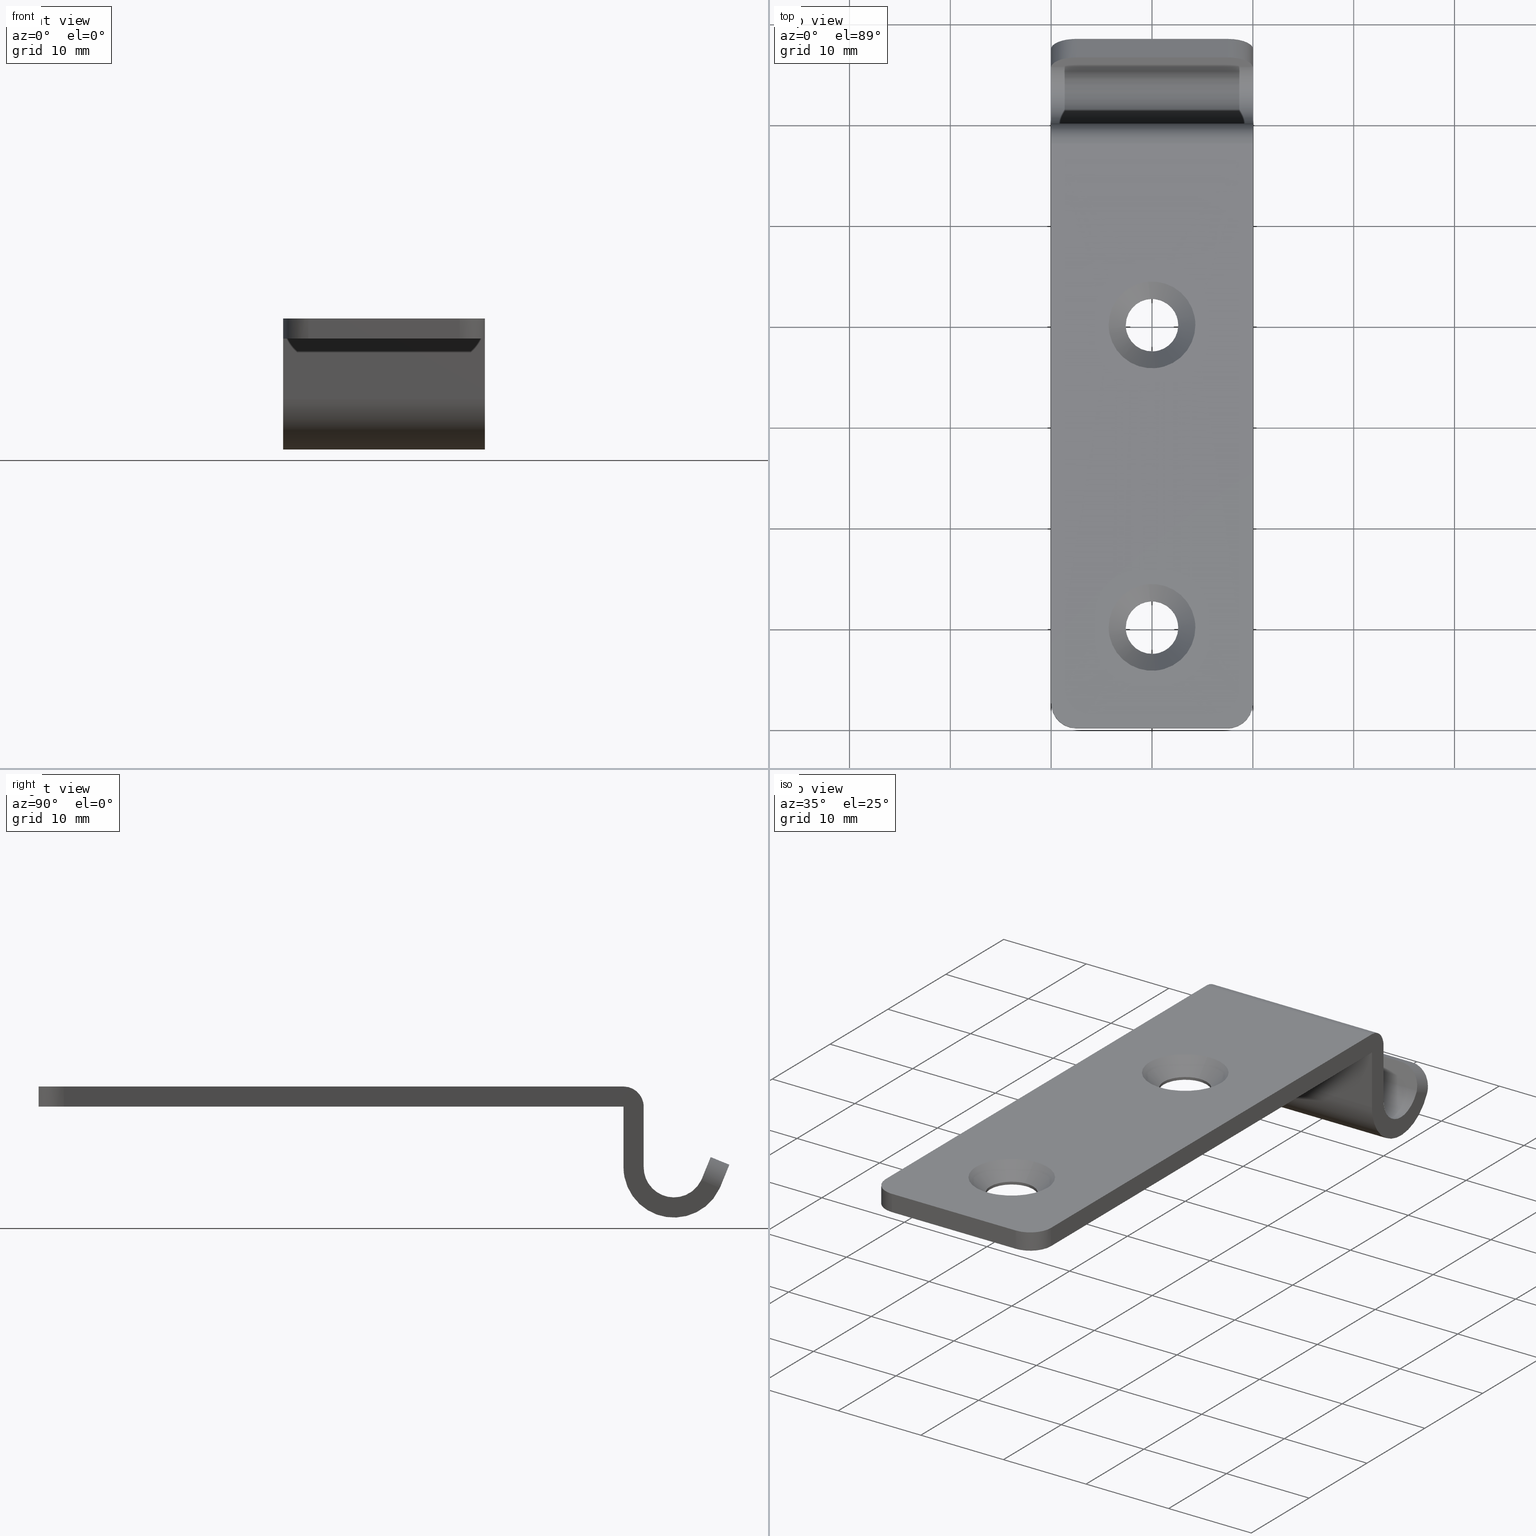
[diagram: canonical four-view strip — front | top / right | iso, engineering-drawing reading convention]
A machine part, canonical four-view strip (front | top / right | iso — engineering-drawing reading convention). The complete STEP part file that produces these views, byte-faithful:
ISO-10303-21;
HEADER;
/****************************************************************
 * Generated by software with PDE/Lib inside                    *
 * PDElib Version 4.4.1-0003, patched  Thursday August 19 11:58 *
 * International Technegroup Inc. (www.iti-oh.com)              *
 ****************************************************************/
FILE_DESCRIPTION((''),'2;1');
FILE_NAME('','2005-07-15T14:41:49',(''),(''),'','CADfix','');
FILE_SCHEMA(('AUTOMOTIVE_DESIGN'));
ENDSEC;
DATA;
#5=APPLICATION_CONTEXT('automotive design');
#6=APPLICATION_PROTOCOL_DEFINITION('Draft International Standard','automotive_design',1998,#5);
#7=PRODUCT_CONTEXT('None',#5,'mechanical');
#8=PRODUCT('keeper','','None',(#7));
#9=PRODUCT_RELATED_PRODUCT_CATEGORY('part','description',(#8));
#10=PRODUCT_DEFINITION_FORMATION('None','None',#8);
#11=PRODUCT_DEFINITION_CONTEXT('part definition',#5,'design');
#12=PRODUCT_DEFINITION('None','None',#10,#11);
#18=(NAMED_UNIT(*)PLANE_ANGLE_UNIT()SI_UNIT($,.RADIAN.));
#19=DIMENSIONAL_EXPONENTS(0.0,0.0,0.0,0.0,0.0,0.0,0.0);
#20=PLANE_ANGLE_MEASURE_WITH_UNIT(PLANE_ANGLE_MEASURE(0.017453292500000),#18);
#24=(CONVERSION_BASED_UNIT('DEGREE',#20)NAMED_UNIT(#19)PLANE_ANGLE_UNIT());
#28=(NAMED_UNIT(*)SI_UNIT($,.STERADIAN.)SOLID_ANGLE_UNIT());
#32=(LENGTH_UNIT()NAMED_UNIT(*)SI_UNIT(.MILLI.,.METRE.));
#34=UNCERTAINTY_MEASURE_WITH_UNIT(LENGTH_MEASURE(0.001000000000000),#32,'DISTANCE_ACCURACY_VALUE','');
#36=(GEOMETRIC_REPRESENTATION_CONTEXT(3)GLOBAL_UNCERTAINTY_ASSIGNED_CONTEXT((#34))GLOBAL_UNIT_ASSIGNED_CONTEXT((#24,#28,#32))REPRESENTATION_CONTEXT('None','None'));
#37=AXIS2_PLACEMENT_3D('',#38,#39,#40);
#38=CARTESIAN_POINT('',(0.0,0.0,0.0));
#39=DIRECTION('',(0.0,0.0,1.0));
#40=DIRECTION('',(1.0,0.0,0.0));
#41=ADVANCED_BREP_SHAPE_REPRESENTATION('',(#37,#1390),#36);
#42=PRODUCT_DEFINITION_SHAPE('','',#12);
#43=SHAPE_DEFINITION_REPRESENTATION(#42,#41);
#44=CARTESIAN_POINT('',(0.296661728324937,12.583019902933056,-1.692500000000113));
#45=CARTESIAN_POINT('',(2.462085495774339,12.334319396724009,-1.692500000000113));
#46=CARTESIAN_POINT('',(2.595150475896853,10.158726202790829,-1.692500000000113));
#47=CARTESIAN_POINT('',(2.753876678687481,7.563575726893975,-1.692500000000112));
#48=CARTESIAN_POINT('',(0.158726202790628,7.404849524103346,-1.692500000000113));
#49=CARTESIAN_POINT('',(0.296661728324937,12.583019902933056,-2.007687499999997));
#50=CARTESIAN_POINT('',(2.462085495774339,12.334319396724009,-2.007687499999997));
#51=CARTESIAN_POINT('',(2.595150475896853,10.158726202790829,-2.007687499999997));
#52=CARTESIAN_POINT('',(2.753876678687481,7.563575726893975,-2.007687499999998));
#53=CARTESIAN_POINT('',(0.158726202790628,7.404849524103346,-2.007687499999997));
#61=(BOUNDED_SURFACE()B_SPLINE_SURFACE(2,1,((#44,#49),(#45,#50),(#46,#51),(#47,#52),(#48,#53)),.UNSPECIFIED.,.F.,.F.,.U.)B_SPLINE_SURFACE_WITH_KNOTS((3,2,3),(2,2),(0.0,3.790882522838564,8.098703571518751),(0.0,0.315187499999885),.UNSPECIFIED.)GEOMETRIC_REPRESENTATION_ITEM()RATIONAL_B_SPLINE_SURFACE(((0.938140952186599,0.938140952186599),(0.742253967444162,0.742253967444162),(1.0,1.0),(0.707106781186548,0.707106781186548),(1.0,1.0)))REPRESENTATION_ITEM('')SURFACE());
#62=CARTESIAN_POINT('',(0.296661728329417,12.583019902932540,-1.700000000000110));
#63=VERTEX_POINT('',#62);
#64=CARTESIAN_POINT('',(2.600000000000000,10.000000000000201,-1.700000000000110));
#65=VERTEX_POINT('',#64);
#66=CARTESIAN_POINT('',(0.296661728329417,12.583019902932545,-1.700000000000110));
#67=CARTESIAN_POINT('',(2.600000000000001,12.318479814861279,-1.700000000000110));
#68=CARTESIAN_POINT('',(2.600000000000000,10.000000000000201,-1.700000000000110));
#76=(BOUNDED_CURVE()B_SPLINE_CURVE(2,(#66,#67,#68),.UNSPECIFIED.,.F.,.U.)B_SPLINE_CURVE_WITH_KNOTS((3,3),(0.269767755877196,0.500000000000000),.UNSPECIFIED.)CURVE()GEOMETRIC_REPRESENTATION_ITEM()RATIONAL_B_SPLINE_CURVE((0.957343736459506,0.730266147776910,1.0))REPRESENTATION_ITEM(''));
#77=EDGE_CURVE('',#63,#65,#76,.T.);
#78=ORIENTED_EDGE('',*,*,#77,.F.);
#79=CARTESIAN_POINT('',(0.296661888108260,12.583019884581811,-2.0));
#80=VERTEX_POINT('',#79);
#81=CARTESIAN_POINT('',(0.296661728329417,12.583019902932540,-1.700000000000110));
#82=CARTESIAN_POINT('',(0.296661888108260,12.583019884581811,-2.0));
#83=QUASI_UNIFORM_CURVE('',1,(#81,#82),.UNSPECIFIED.,.F.,.U.);
#84=EDGE_CURVE('',#63,#80,#83,.T.);
#85=ORIENTED_EDGE('',*,*,#84,.T.);
#86=CARTESIAN_POINT('',(2.600000000000000,10.000000000000201,-2.0));
#87=VERTEX_POINT('',#86);
#88=CARTESIAN_POINT('',(0.296661888108260,12.583019884581812,-2.000000000000000));
#89=CARTESIAN_POINT('',(2.600000000000000,12.318479526145575,-1.999999999999999));
#90=CARTESIAN_POINT('',(2.600000000000000,10.000000000000201,-2.0));
#98=(BOUNDED_CURVE()B_SPLINE_CURVE(2,(#88,#89,#90),.UNSPECIFIED.,.F.,.U.)B_SPLINE_CURVE_WITH_KNOTS((3,3),(0.269767776814195,0.500000000000000),.UNSPECIFIED.)CURVE()GEOMETRIC_REPRESENTATION_ITEM()RATIONAL_B_SPLINE_CURVE((0.957343695159273,0.730266172306129,1.0))REPRESENTATION_ITEM(''));
#99=EDGE_CURVE('',#80,#87,#98,.T.);
#100=ORIENTED_EDGE('',*,*,#99,.T.);
#101=CARTESIAN_POINT('',(0.158726203236971,7.404849524130645,-2.0));
#102=VERTEX_POINT('',#101);
#103=CARTESIAN_POINT('',(2.600000000000000,10.000000000000201,-2.0));
#104=CARTESIAN_POINT('',(2.600000000000001,7.554164226888299,-2.0));
#105=CARTESIAN_POINT('',(0.158726203236971,7.404849524130645,-2.000000000000000));
#113=(BOUNDED_CURVE()B_SPLINE_CURVE(2,(#103,#104,#105),.UNSPECIFIED.,.F.,.U.)B_SPLINE_CURVE_WITH_KNOTS((3,3),(0.500000000000000,0.739332962182615),.UNSPECIFIED.)CURVE()GEOMETRIC_REPRESENTATION_ITEM()RATIONAL_B_SPLINE_CURVE((1.0,0.719603993352703,0.976072041545995))REPRESENTATION_ITEM(''));
#114=EDGE_CURVE('',#87,#102,#113,.T.);
#115=ORIENTED_EDGE('',*,*,#114,.T.);
#116=CARTESIAN_POINT('',(0.158725742557354,7.404849495954355,-1.700000186067361));
#117=VERTEX_POINT('',#116);
#118=CARTESIAN_POINT('',(0.158725742557354,7.404849495954355,-1.700000186067361));
#119=CARTESIAN_POINT('',(0.158726203236971,7.404849524130645,-2.0));
#120=QUASI_UNIFORM_CURVE('',1,(#118,#119),.UNSPECIFIED.,.F.,.U.);
#121=EDGE_CURVE('',#117,#102,#120,.T.);
#122=ORIENTED_EDGE('',*,*,#121,.F.);
#123=CARTESIAN_POINT('',(2.600000000000000,10.000000000000201,-1.700000000000110));
#124=CARTESIAN_POINT('',(2.600000000000001,7.554163791481542,-1.700000000000109));
#125=CARTESIAN_POINT('',(0.158725742557354,7.404849495954355,-1.700000186067361));
#133=(BOUNDED_CURVE()B_SPLINE_CURVE(2,(#123,#124,#125),.UNSPECIFIED.,.F.,.U.)B_SPLINE_CURVE_WITH_KNOTS((3,3),(0.500000000000000,0.739332992842034),.UNSPECIFIED.)CURVE()GEOMETRIC_REPRESENTATION_ITEM()RATIONAL_B_SPLINE_CURVE((1.0,0.719603957432958,0.976072107254977))REPRESENTATION_ITEM(''));
#134=EDGE_CURVE('',#65,#117,#133,.T.);
#135=ORIENTED_EDGE('',*,*,#134,.F.);
#136=EDGE_LOOP('',(#78,#85,#100,#115,#122,#135));
#137=FACE_OUTER_BOUND('',#136,.T.);
#138=ADVANCED_FACE('',(#137),#61,.F.);
#139=CARTESIAN_POINT('',(0.158726202790628,7.404849524103346,-1.692500000000113));
#140=CARTESIAN_POINT('',(-2.436424273106225,7.246123321312719,-1.692500000000112));
#141=CARTESIAN_POINT('',(-2.595150475896853,9.841273797209571,-1.692500000000113));
#142=CARTESIAN_POINT('',(-2.753876678687481,12.436424273106423,-1.692500000000112));
#143=CARTESIAN_POINT('',(-0.158726202790628,12.595150475897050,-1.692500000000113));
#144=CARTESIAN_POINT('',(0.069501167051021,12.609109459826623,-1.692500000000112));
#145=CARTESIAN_POINT('',(0.296661728324937,12.583019902933056,-1.692500000000113));
#146=CARTESIAN_POINT('',(0.158726202790628,7.404849524103346,-2.007687499999997));
#147=CARTESIAN_POINT('',(-2.436424273106225,7.246123321312719,-2.007687499999998));
#148=CARTESIAN_POINT('',(-2.595150475896853,9.841273797209571,-2.007687499999997));
#149=CARTESIAN_POINT('',(-2.753876678687481,12.436424273106423,-2.007687499999998));
#150=CARTESIAN_POINT('',(-0.158726202790628,12.595150475897050,-2.007687499999997));
#151=CARTESIAN_POINT('',(0.069501167051021,12.609109459826623,-2.007687499999997));
#152=CARTESIAN_POINT('',(0.296661728324937,12.583019902933056,-2.007687499999997));
#160=(BOUNDED_SURFACE()B_SPLINE_SURFACE(2,1,((#139,#146),(#140,#147),(#141,#148),(#142,#149),(#143,#150),(#144,#151),(#145,#152)),.UNSPECIFIED.,.F.,.F.,.U.)B_SPLINE_SURFACE_WITH_KNOTS((3,2,2,3),(2,2),(0.0,4.307821048680188,8.615642097360377,9.132580623202001),(0.0,0.315187499999885),.UNSPECIFIED.)GEOMETRIC_REPRESENTATION_ITEM()RATIONAL_B_SPLINE_SURFACE(((1.0,1.0),(0.707106781186548,0.707106781186548),(1.0,1.0),(0.707106781186548,0.707106781186548),(1.0,1.0),(0.964852813742386,0.964852813742386),(0.938140952186599,0.938140952186599)))REPRESENTATION_ITEM('')SURFACE());
#161=CARTESIAN_POINT('',(-0.203992219694042,12.591983392216880,-1.700001782457548));
#162=VERTEX_POINT('',#161);
#163=CARTESIAN_POINT('',(-0.203992219694042,12.591983392216880,-1.700001782457548));
#164=CARTESIAN_POINT('',(-0.102153519103097,12.599998583866569,-1.700001420512496));
#165=CARTESIAN_POINT('',(0.000000082923891,12.599998946322611,-1.700001056935859));
#166=CARTESIAN_POINT('',(0.148816852436744,12.599999474346440,-1.700000527279543));
#167=CARTESIAN_POINT('',(0.296661728329417,12.583019902932543,-1.700000000000110));
#175=(BOUNDED_CURVE()B_SPLINE_CURVE(2,(#163,#164,#165,#166,#167),.UNSPECIFIED.,.F.,.U.)B_SPLINE_CURVE_WITH_KNOTS((3,2,3),(0.236331385905653,0.250000000000000,0.269767755877196),.UNSPECIFIED.)CURVE()GEOMETRIC_REPRESENTATION_ITEM()RATIONAL_B_SPLINE_CURVE((0.969723534129892,0.983986222484751,1.0,0.976840633409638,0.957343736459506))REPRESENTATION_ITEM(''));
#176=EDGE_CURVE('',#162,#63,#175,.T.);
#177=ORIENTED_EDGE('',*,*,#176,.F.);
#178=CARTESIAN_POINT('',(-2.600000000000000,10.000000000000201,-1.700000000000110));
#179=VERTEX_POINT('',#178);
#180=CARTESIAN_POINT('',(-2.600000000000000,10.000000000000201,-1.700000000000110));
#181=CARTESIAN_POINT('',(-2.599999930075430,12.403415589074736,-1.700000891228828));
#182=CARTESIAN_POINT('',(-0.203992219694042,12.591983392216880,-1.700001782457548));
#190=(BOUNDED_CURVE()B_SPLINE_CURVE(2,(#180,#181,#182),.UNSPECIFIED.,.F.,.U.)B_SPLINE_CURVE_WITH_KNOTS((3,3),(0.0,0.236331385905653),.UNSPECIFIED.)CURVE()GEOMETRIC_REPRESENTATION_ITEM()RATIONAL_B_SPLINE_CURVE((1.0,0.723120558701796,0.969723534129892))REPRESENTATION_ITEM(''));
#191=EDGE_CURVE('',#179,#162,#190,.T.);
#192=ORIENTED_EDGE('',*,*,#191,.F.);
#193=CARTESIAN_POINT('',(0.158725742557354,7.404849495954355,-1.700000186067361));
#194=CARTESIAN_POINT('',(0.079436953814472,7.400000000000200,-1.700000000000110));
#195=CARTESIAN_POINT('',(0.0,7.400000000000200,-1.700000000000110));
#196=CARTESIAN_POINT('',(-2.600000000000001,7.400000000000199,-1.700000000000111));
#197=CARTESIAN_POINT('',(-2.600000000000000,10.000000000000201,-1.700000000000110));
#205=(BOUNDED_CURVE()B_SPLINE_CURVE(2,(#193,#194,#195,#196,#197),.UNSPECIFIED.,.F.,.U.)B_SPLINE_CURVE_WITH_KNOTS((3,2,3),(0.739332992842034,0.750000000000000,1.0),.UNSPECIFIED.)CURVE()GEOMETRIC_REPRESENTATION_ITEM()RATIONAL_B_SPLINE_CURVE((0.976072107254977,0.987502823753589,1.0,0.707106781186548,1.0))REPRESENTATION_ITEM(''));
#206=EDGE_CURVE('',#117,#179,#205,.T.);
#207=ORIENTED_EDGE('',*,*,#206,.F.);
#208=ORIENTED_EDGE('',*,*,#121,.T.);
#209=CARTESIAN_POINT('',(-2.600000000000000,10.000000000000201,-2.0));
#210=VERTEX_POINT('',#209);
#211=CARTESIAN_POINT('',(0.158726203236971,7.404849524130646,-2.000000000000000));
#212=CARTESIAN_POINT('',(0.079437185023926,7.400000000000200,-2.000000000000000));
#213=CARTESIAN_POINT('',(0.0,7.400000000000200,-2.0));
#214=CARTESIAN_POINT('',(-2.600000000000001,7.400000000000199,-2.000000000000000));
#215=CARTESIAN_POINT('',(-2.600000000000000,10.000000000000201,-2.0));
#223=(BOUNDED_CURVE()B_SPLINE_CURVE(2,(#211,#212,#213,#214,#215),.UNSPECIFIED.,.F.,.U.)B_SPLINE_CURVE_WITH_KNOTS((3,2,3),(0.739332962182615,0.750000000000000,1.0),.UNSPECIFIED.)CURVE()GEOMETRIC_REPRESENTATION_ITEM()RATIONAL_B_SPLINE_CURVE((0.976072041545997,0.987502787833845,1.0,0.707106781186548,1.0))REPRESENTATION_ITEM(''));
#224=EDGE_CURVE('',#102,#210,#223,.T.);
#225=ORIENTED_EDGE('',*,*,#224,.T.);
#226=CARTESIAN_POINT('',(-2.600000000000000,10.000000000000201,-2.0));
#227=CARTESIAN_POINT('',(-2.600000000000001,12.600000000000200,-2.000000000000000));
#228=CARTESIAN_POINT('',(0.0,12.600000000000200,-2.0));
#229=CARTESIAN_POINT('',(0.148816972426367,12.600000000000204,-2.000000000000000));
#230=CARTESIAN_POINT('',(0.296661888108260,12.583019884581812,-2.000000000000000));
#238=(BOUNDED_CURVE()B_SPLINE_CURVE(2,(#226,#227,#228,#229,#230),.UNSPECIFIED.,.F.,.U.)B_SPLINE_CURVE_WITH_KNOTS((3,2,3),(0.0,0.250000000000000,0.269767776814195),.UNSPECIFIED.)CURVE()GEOMETRIC_REPRESENTATION_ITEM()RATIONAL_B_SPLINE_CURVE((1.0,0.707106781186548,1.0,0.976840608880418,0.957343695159273))REPRESENTATION_ITEM(''));
#239=EDGE_CURVE('',#210,#80,#238,.T.);
#240=ORIENTED_EDGE('',*,*,#239,.T.);
#241=ORIENTED_EDGE('',*,*,#84,.F.);
#242=EDGE_LOOP('',(#177,#192,#207,#208,#225,#240,#241));
#243=FACE_OUTER_BOUND('',#242,.T.);
#244=ADVANCED_FACE('',(#243),#160,.F.);
#245=CARTESIAN_POINT('',(-0.200659137323964,12.549616081022659,-1.742500000000113));
#246=CARTESIAN_POINT('',(-2.750275218346430,12.348956943698703,-1.742500000000113));
#247=CARTESIAN_POINT('',(-2.549616081022466,9.799340862676235,-1.742500000000113));
#248=CARTESIAN_POINT('',(-2.348956943698502,7.249724781653769,-1.742500000000113));
#249=CARTESIAN_POINT('',(0.200659137323964,7.450383918977733,-1.742500000000113));
#250=CARTESIAN_POINT('',(-0.340791985987388,14.330172746403500,0.043562500000003));
#251=CARTESIAN_POINT('',(-4.670964732390691,13.989380760416113,0.043562500000003));
#252=CARTESIAN_POINT('',(-4.330172746403303,9.659208014012810,0.043562500000003));
#253=CARTESIAN_POINT('',(-3.989380760415914,5.329035267609507,0.043562500000003));
#254=CARTESIAN_POINT('',(0.340791985987388,5.669827253596896,0.043562500000003));
#262=(BOUNDED_SURFACE()B_SPLINE_SURFACE(2,1,((#245,#250),(#246,#251),(#247,#252),(#248,#253),(#249,#254)),.UNSPECIFIED.,.F.,.F.,.U.)B_SPLINE_SURFACE_WITH_KNOTS((3,2,3),(2,2),(0.0,7.196649986060920,14.393299972121840),(0.0,2.525873810746158),.UNSPECIFIED.)GEOMETRIC_REPRESENTATION_ITEM()RATIONAL_B_SPLINE_SURFACE(((1.0,1.0),(0.707106781186548,0.707106781186548),(1.0,1.0),(0.707106781186548,0.707106781186548),(1.0,1.0)))REPRESENTATION_ITEM('')SURFACE());
#263=ORIENTED_EDGE('',*,*,#191,.T.);
#264=CARTESIAN_POINT('',(-0.337374111841993,14.286744535063580,2.744801E-011));
#265=VERTEX_POINT('',#264);
#266=CARTESIAN_POINT('',(-0.203992219694042,12.591983392216880,-1.700001782457548));
#267=CARTESIAN_POINT('',(-0.337374111841993,14.286744535063580,2.744801E-011));
#268=QUASI_UNIFORM_CURVE('',1,(#266,#267),.UNSPECIFIED.,.F.,.U.);
#269=EDGE_CURVE('',#162,#265,#268,.T.);
#270=ORIENTED_EDGE('',*,*,#269,.T.);
#271=CARTESIAN_POINT('',(-4.300000000000096,10.000000000000201,-6.661338E-015));
#272=VERTEX_POINT('',#271);
#273=CARTESIAN_POINT('',(-4.300000000000096,10.000000000000201,-6.661338E-015));
#274=CARTESIAN_POINT('',(-4.300000000000097,13.974879113739744,-6.661338E-015));
#275=CARTESIAN_POINT('',(-0.337374111841993,14.286744535063580,2.744801E-011));
#283=(BOUNDED_CURVE()B_SPLINE_CURVE(2,(#273,#274,#275),.UNSPECIFIED.,.F.,.U.)B_SPLINE_CURVE_WITH_KNOTS((3,3),(0.0,0.236331300615964),.UNSPECIFIED.)CURVE()GEOMETRIC_REPRESENTATION_ITEM()RATIONAL_B_SPLINE_CURVE((1.0,0.723120658624883,0.969723356136748))REPRESENTATION_ITEM(''));
#284=EDGE_CURVE('',#272,#265,#283,.T.);
#285=ORIENTED_EDGE('',*,*,#284,.F.);
#286=CARTESIAN_POINT('',(0.337374111841994,5.713255464936820,2.744751E-011));
#287=VERTEX_POINT('',#286);
#288=CARTESIAN_POINT('',(0.337374111841994,5.713255464936820,2.744751E-011));
#289=CARTESIAN_POINT('',(0.168947460344056,5.700000000000105,-6.661338E-015));
#290=CARTESIAN_POINT('',(0.0,5.700000000000104,-6.661338E-015));
#291=CARTESIAN_POINT('',(-4.300000000000096,5.700000000000104,-6.661338E-015));
#292=CARTESIAN_POINT('',(-4.300000000000096,10.000000000000201,-6.661338E-015));
#300=(BOUNDED_CURVE()B_SPLINE_CURVE(2,(#288,#289,#290,#291,#292),.UNSPECIFIED.,.F.,.U.)B_SPLINE_CURVE_WITH_KNOTS((3,2,3),(0.736331300615964,0.750000000000000,1.0),.UNSPECIFIED.)CURVE()GEOMETRIC_REPRESENTATION_ITEM()RATIONAL_B_SPLINE_CURVE((0.969723356136748,0.983986122561664,1.0,0.707106781186548,1.0))REPRESENTATION_ITEM(''));
#301=EDGE_CURVE('',#287,#272,#300,.T.);
#302=ORIENTED_EDGE('',*,*,#301,.F.);
#303=CARTESIAN_POINT('',(0.158725742557354,7.404849495954355,-1.700000186067361));
#304=CARTESIAN_POINT('',(0.337374111841994,5.713255464936820,2.744751E-011));
#305=QUASI_UNIFORM_CURVE('',1,(#303,#304),.UNSPECIFIED.,.F.,.U.);
#306=EDGE_CURVE('',#117,#287,#305,.T.);
#307=ORIENTED_EDGE('',*,*,#306,.F.);
#308=ORIENTED_EDGE('',*,*,#206,.T.);
#309=EDGE_LOOP('',(#263,#270,#285,#302,#307,#308));
#310=FACE_OUTER_BOUND('',#309,.T.);
#311=ADVANCED_FACE('',(#310),#262,.F.);
#312=CARTESIAN_POINT('',(0.120925239611121,7.444108725135951,-1.742500000000113));
#313=CARTESIAN_POINT('',(0.160532293707504,7.447225867895633,-1.742500000000113));
#314=CARTESIAN_POINT('',(2.750275218346430,7.651043056301698,-1.742500000000113));
#315=CARTESIAN_POINT('',(2.549616081022466,10.200659137324161,-1.742500000000113));
#316=CARTESIAN_POINT('',(2.348956943698502,12.750275218346628,-1.742500000000113));
#317=CARTESIAN_POINT('',(-0.218745596223987,12.548192645836828,-1.742500000000113));
#318=CARTESIAN_POINT('',(-0.236726077939954,12.546777551236241,-1.742500000000112));
#319=CARTESIAN_POINT('',(0.205374911467602,5.659169698698991,0.043562500000003));
#320=CARTESIAN_POINT('',(0.272642053171817,5.664463737564327,0.043562500000003));
#321=CARTESIAN_POINT('',(4.670964732390691,6.010619239584284,0.043562500000003));
#322=CARTESIAN_POINT('',(4.330172746403303,10.340791985987590,0.043562500000003));
#323=CARTESIAN_POINT('',(3.989380760415914,14.670964732390889,0.043562500000003));
#324=CARTESIAN_POINT('',(-0.371509352413949,14.327755237236586,0.043562500000003));
#325=CARTESIAN_POINT('',(-0.402046731148422,14.325351893408220,0.043562500000003));
#333=(BOUNDED_SURFACE()B_SPLINE_SURFACE(2,1,((#312,#319),(#313,#320),(#314,#321),(#315,#322),(#316,#323),(#317,#324),(#318,#325)),.UNSPECIFIED.,.F.,.F.,.U.)B_SPLINE_SURFACE_WITH_KNOTS((3,1,2,1,3),(2,2),(0.0,0.161230071296414,7.357880057357336,14.554530043418261,14.626940639289369),(0.0,2.526491307936969),.UNSPECIFIED.)GEOMETRIC_REPRESENTATION_ITEM()RATIONAL_B_SPLINE_SURFACE(((1.013123660214960,1.013123660214960),(1.006561830107480,1.006561830107480),(0.707106781186548,0.707106781186548),(1.0,1.0),(0.707106781186548,0.707106781186548),(1.002947006251793,1.002947006251793),(1.005894012503587,1.005894012503587)))REPRESENTATION_ITEM('')SURFACE());
#334=ORIENTED_EDGE('',*,*,#176,.T.);
#335=ORIENTED_EDGE('',*,*,#77,.T.);
#336=ORIENTED_EDGE('',*,*,#134,.T.);
#337=ORIENTED_EDGE('',*,*,#306,.T.);
#338=CARTESIAN_POINT('',(4.300000000000096,10.000000000000201,0.0));
#339=VERTEX_POINT('',#338);
#340=CARTESIAN_POINT('',(4.300000000000096,10.000000000000201,-6.661338E-015));
#341=CARTESIAN_POINT('',(4.300000000000095,6.025120886260643,-6.661338E-015));
#342=CARTESIAN_POINT('',(0.337374111841994,5.713255464936820,2.744751E-011));
#350=(BOUNDED_CURVE()B_SPLINE_CURVE(2,(#340,#341,#342),.UNSPECIFIED.,.F.,.U.)B_SPLINE_CURVE_WITH_KNOTS((3,3),(0.500000000000000,0.736331300615964),.UNSPECIFIED.)CURVE()GEOMETRIC_REPRESENTATION_ITEM()RATIONAL_B_SPLINE_CURVE((1.0,0.723120658624883,0.969723356136749))REPRESENTATION_ITEM(''));
#351=EDGE_CURVE('',#339,#287,#350,.T.);
#352=ORIENTED_EDGE('',*,*,#351,.F.);
#353=CARTESIAN_POINT('',(-0.337374111841993,14.286744535063578,2.744801E-011));
#354=CARTESIAN_POINT('',(-0.168947460344055,14.300000000000294,-6.661338E-015));
#355=CARTESIAN_POINT('',(0.0,14.300000000000299,-6.661338E-015));
#356=CARTESIAN_POINT('',(4.300000000000096,14.300000000000297,-6.661338E-015));
#357=CARTESIAN_POINT('',(4.300000000000096,10.000000000000201,-6.661338E-015));
#365=(BOUNDED_CURVE()B_SPLINE_CURVE(2,(#353,#354,#355,#356,#357),.UNSPECIFIED.,.F.,.U.)B_SPLINE_CURVE_WITH_KNOTS((3,2,3),(0.236331300615964,0.250000000000000,0.500000000000000),.UNSPECIFIED.)CURVE()GEOMETRIC_REPRESENTATION_ITEM()RATIONAL_B_SPLINE_CURVE((0.969723356136748,0.983986122561664,1.0,0.707106781186548,1.0))REPRESENTATION_ITEM(''));
#366=EDGE_CURVE('',#265,#339,#365,.T.);
#367=ORIENTED_EDGE('',*,*,#366,.F.);
#368=ORIENTED_EDGE('',*,*,#269,.F.);
#369=EDGE_LOOP('',(#334,#335,#336,#337,#352,#367,#368));
#370=FACE_OUTER_BOUND('',#369,.T.);
#371=ADVANCED_FACE('',(#370),#333,.F.);
#372=CARTESIAN_POINT('',(0.296661728324937,42.583019902932840,-1.692500000000113));
#373=CARTESIAN_POINT('',(2.462085495774339,42.334319396723814,-1.692500000000113));
#374=CARTESIAN_POINT('',(2.595150475896853,40.158726202790632,-1.692500000000113));
#375=CARTESIAN_POINT('',(2.753876678687481,37.563575726893781,-1.692500000000112));
#376=CARTESIAN_POINT('',(0.158726202790628,37.404849524103149,-1.692500000000113));
#377=CARTESIAN_POINT('',(0.296661728324937,42.583019902932840,-2.007687499999997));
#378=CARTESIAN_POINT('',(2.462085495774339,42.334319396723814,-2.007687499999997));
#379=CARTESIAN_POINT('',(2.595150475896853,40.158726202790632,-2.007687499999997));
#380=CARTESIAN_POINT('',(2.753876678687481,37.563575726893781,-2.007687499999998));
#381=CARTESIAN_POINT('',(0.158726202790628,37.404849524103149,-2.007687499999997));
#389=(BOUNDED_SURFACE()B_SPLINE_SURFACE(2,1,((#372,#377),(#373,#378),(#374,#379),(#375,#380),(#376,#381)),.UNSPECIFIED.,.F.,.F.,.U.)B_SPLINE_SURFACE_WITH_KNOTS((3,2,3),(2,2),(0.0,3.790882522838565,8.098703571518755),(0.0,0.315187499999885),.UNSPECIFIED.)GEOMETRIC_REPRESENTATION_ITEM()RATIONAL_B_SPLINE_SURFACE(((0.938140952186599,0.938140952186599),(0.742253967444162,0.742253967444162),(1.0,1.0),(0.707106781186548,0.707106781186548),(1.0,1.0)))REPRESENTATION_ITEM('')SURFACE());
#390=CARTESIAN_POINT('',(0.296661728329418,42.583019902932342,-1.700000000000110));
#391=VERTEX_POINT('',#390);
#392=CARTESIAN_POINT('',(2.600000000000000,40.0,-1.700000000000110));
#393=VERTEX_POINT('',#392);
#394=CARTESIAN_POINT('',(0.296661728329418,42.583019902932335,-1.700000000000110));
#395=CARTESIAN_POINT('',(2.600000000000001,42.318479814861092,-1.700000000000110));
#396=CARTESIAN_POINT('',(2.600000000000000,40.0,-1.700000000000110));
#404=(BOUNDED_CURVE()B_SPLINE_CURVE(2,(#394,#395,#396),.UNSPECIFIED.,.F.,.U.)B_SPLINE_CURVE_WITH_KNOTS((3,3),(0.269767755877196,0.500000000000000),.UNSPECIFIED.)CURVE()GEOMETRIC_REPRESENTATION_ITEM()RATIONAL_B_SPLINE_CURVE((0.957343736459506,0.730266147776910,1.0))REPRESENTATION_ITEM(''));
#405=EDGE_CURVE('',#391,#393,#404,.T.);
#406=ORIENTED_EDGE('',*,*,#405,.F.);
#407=CARTESIAN_POINT('',(0.296661888108260,42.583019884581610,-2.0));
#408=VERTEX_POINT('',#407);
#409=CARTESIAN_POINT('',(0.296661728329418,42.583019902932342,-1.700000000000110));
#410=CARTESIAN_POINT('',(0.296661888108260,42.583019884581610,-2.0));
#411=QUASI_UNIFORM_CURVE('',1,(#409,#410),.UNSPECIFIED.,.F.,.U.);
#412=EDGE_CURVE('',#391,#408,#411,.T.);
#413=ORIENTED_EDGE('',*,*,#412,.T.);
#414=CARTESIAN_POINT('',(2.600000000000000,40.0,-2.0));
#415=VERTEX_POINT('',#414);
#416=CARTESIAN_POINT('',(0.296661888108260,42.583019884581610,-2.000000000000000));
#417=CARTESIAN_POINT('',(2.600000000000000,42.318479526145367,-2.000000000000000));
#418=CARTESIAN_POINT('',(2.600000000000000,40.0,-2.0));
#426=(BOUNDED_CURVE()B_SPLINE_CURVE(2,(#416,#417,#418),.UNSPECIFIED.,.F.,.U.)B_SPLINE_CURVE_WITH_KNOTS((3,3),(0.269767776814195,0.500000000000000),.UNSPECIFIED.)CURVE()GEOMETRIC_REPRESENTATION_ITEM()RATIONAL_B_SPLINE_CURVE((0.957343695159273,0.730266172306129,1.0))REPRESENTATION_ITEM(''));
#427=EDGE_CURVE('',#408,#415,#426,.T.);
#428=ORIENTED_EDGE('',*,*,#427,.T.);
#429=CARTESIAN_POINT('',(0.158726203236971,37.404849524130448,-2.0));
#430=VERTEX_POINT('',#429);
#431=CARTESIAN_POINT('',(2.600000000000000,40.0,-2.0));
#432=CARTESIAN_POINT('',(2.600000000000001,37.554164226888098,-2.0));
#433=CARTESIAN_POINT('',(0.158726203236971,37.404849524130448,-2.000000000000000));
#441=(BOUNDED_CURVE()B_SPLINE_CURVE(2,(#431,#432,#433),.UNSPECIFIED.,.F.,.U.)B_SPLINE_CURVE_WITH_KNOTS((3,3),(0.500000000000000,0.739332962182615),.UNSPECIFIED.)CURVE()GEOMETRIC_REPRESENTATION_ITEM()RATIONAL_B_SPLINE_CURVE((1.0,0.719603993352703,0.976072041545995))REPRESENTATION_ITEM(''));
#442=EDGE_CURVE('',#415,#430,#441,.T.);
#443=ORIENTED_EDGE('',*,*,#442,.T.);
#444=CARTESIAN_POINT('',(0.158725742557354,37.404849495954160,-1.700000186067361));
#445=VERTEX_POINT('',#444);
#446=CARTESIAN_POINT('',(0.158725742557354,37.404849495954160,-1.700000186067361));
#447=CARTESIAN_POINT('',(0.158726203236971,37.404849524130448,-2.0));
#448=QUASI_UNIFORM_CURVE('',1,(#446,#447),.UNSPECIFIED.,.F.,.U.);
#449=EDGE_CURVE('',#445,#430,#448,.T.);
#450=ORIENTED_EDGE('',*,*,#449,.F.);
#451=CARTESIAN_POINT('',(2.600000000000000,40.0,-1.700000000000110));
#452=CARTESIAN_POINT('',(2.600000000000001,37.554163791481351,-1.700000000000109));
#453=CARTESIAN_POINT('',(0.158725742557354,37.404849495954160,-1.700000186067361));
#461=(BOUNDED_CURVE()B_SPLINE_CURVE(2,(#451,#452,#453),.UNSPECIFIED.,.F.,.U.)B_SPLINE_CURVE_WITH_KNOTS((3,3),(0.500000000000000,0.739332992842034),.UNSPECIFIED.)CURVE()GEOMETRIC_REPRESENTATION_ITEM()RATIONAL_B_SPLINE_CURVE((1.0,0.719603957432958,0.976072107254977))REPRESENTATION_ITEM(''));
#462=EDGE_CURVE('',#393,#445,#461,.T.);
#463=ORIENTED_EDGE('',*,*,#462,.F.);
#464=EDGE_LOOP('',(#406,#413,#428,#443,#450,#463));
#465=FACE_OUTER_BOUND('',#464,.T.);
#466=ADVANCED_FACE('',(#465),#389,.F.);
#467=CARTESIAN_POINT('',(0.158726202790628,37.404849524103149,-1.692500000000113));
#468=CARTESIAN_POINT('',(-2.436424273106225,37.246123321312524,-1.692500000000112));
#469=CARTESIAN_POINT('',(-2.595150475896853,39.841273797209382,-1.692500000000113));
#470=CARTESIAN_POINT('',(-2.753876678687481,42.436424273106226,-1.692500000000112));
#471=CARTESIAN_POINT('',(-0.158726202790628,42.595150475896851,-1.692500000000113));
#472=CARTESIAN_POINT('',(0.069501167051021,42.609109459826421,-1.692500000000112));
#473=CARTESIAN_POINT('',(0.296661728324937,42.583019902932840,-1.692500000000113));
#474=CARTESIAN_POINT('',(0.158726202790628,37.404849524103149,-2.007687499999997));
#475=CARTESIAN_POINT('',(-2.436424273106225,37.246123321312524,-2.007687499999998));
#476=CARTESIAN_POINT('',(-2.595150475896853,39.841273797209382,-2.007687499999997));
#477=CARTESIAN_POINT('',(-2.753876678687481,42.436424273106226,-2.007687499999998));
#478=CARTESIAN_POINT('',(-0.158726202790628,42.595150475896851,-2.007687499999997));
#479=CARTESIAN_POINT('',(0.069501167051021,42.609109459826421,-2.007687499999997));
#480=CARTESIAN_POINT('',(0.296661728324937,42.583019902932840,-2.007687499999997));
#488=(BOUNDED_SURFACE()B_SPLINE_SURFACE(2,1,((#467,#474),(#468,#475),(#469,#476),(#470,#477),(#471,#478),(#472,#479),(#473,#480)),.UNSPECIFIED.,.F.,.F.,.U.)B_SPLINE_SURFACE_WITH_KNOTS((3,2,2,3),(2,2),(0.0,4.307821048680188,8.615642097360377,9.132580623201999),(0.0,0.315187499999885),.UNSPECIFIED.)GEOMETRIC_REPRESENTATION_ITEM()RATIONAL_B_SPLINE_SURFACE(((1.0,1.0),(0.707106781186548,0.707106781186548),(1.0,1.0),(0.707106781186548,0.707106781186548),(1.0,1.0),(0.964852813742386,0.964852813742386),(0.938140952186599,0.938140952186599)))REPRESENTATION_ITEM('')SURFACE());
#489=CARTESIAN_POINT('',(-0.203992219694041,42.591983392216683,-1.700001782457548));
#490=VERTEX_POINT('',#489);
#491=CARTESIAN_POINT('',(-0.203992219694042,42.591983392216683,-1.700001782457548));
#492=CARTESIAN_POINT('',(-0.102153519103097,42.599998583866366,-1.700001420512496));
#493=CARTESIAN_POINT('',(0.000000082923891,42.599998946322401,-1.700001056935859));
#494=CARTESIAN_POINT('',(0.148816852436745,42.599999474346234,-1.700000527279543));
#495=CARTESIAN_POINT('',(0.296661728329418,42.583019902932335,-1.700000000000110));
#503=(BOUNDED_CURVE()B_SPLINE_CURVE(2,(#491,#492,#493,#494,#495),.UNSPECIFIED.,.F.,.U.)B_SPLINE_CURVE_WITH_KNOTS((3,2,3),(0.236331385905653,0.250000000000000,0.269767755877196),.UNSPECIFIED.)CURVE()GEOMETRIC_REPRESENTATION_ITEM()RATIONAL_B_SPLINE_CURVE((0.969723534129892,0.983986222484751,1.0,0.976840633409638,0.957343736459506))REPRESENTATION_ITEM(''));
#504=EDGE_CURVE('',#490,#391,#503,.T.);
#505=ORIENTED_EDGE('',*,*,#504,.F.);
#506=CARTESIAN_POINT('',(-2.600000000000000,40.0,-1.700000000000110));
#507=VERTEX_POINT('',#506);
#508=CARTESIAN_POINT('',(-2.600000000000000,40.0,-1.700000000000110));
#509=CARTESIAN_POINT('',(-2.599999930075430,42.403415589074541,-1.700000891228830));
#510=CARTESIAN_POINT('',(-0.203992219694042,42.591983392216683,-1.700001782457548));
#518=(BOUNDED_CURVE()B_SPLINE_CURVE(2,(#508,#509,#510),.UNSPECIFIED.,.F.,.U.)B_SPLINE_CURVE_WITH_KNOTS((3,3),(0.0,0.236331385905653),.UNSPECIFIED.)CURVE()GEOMETRIC_REPRESENTATION_ITEM()RATIONAL_B_SPLINE_CURVE((1.0,0.723120558701796,0.969723534129892))REPRESENTATION_ITEM(''));
#519=EDGE_CURVE('',#507,#490,#518,.T.);
#520=ORIENTED_EDGE('',*,*,#519,.F.);
#521=CARTESIAN_POINT('',(0.158725742557354,37.404849495954160,-1.700000186067361));
#522=CARTESIAN_POINT('',(0.079436953814472,37.400000000000006,-1.700000000000110));
#523=CARTESIAN_POINT('',(0.0,37.400000000000013,-1.700000000000110));
#524=CARTESIAN_POINT('',(-2.600000000000001,37.399999999999999,-1.700000000000111));
#525=CARTESIAN_POINT('',(-2.600000000000000,40.0,-1.700000000000110));
#533=(BOUNDED_CURVE()B_SPLINE_CURVE(2,(#521,#522,#523,#524,#525),.UNSPECIFIED.,.F.,.U.)B_SPLINE_CURVE_WITH_KNOTS((3,2,3),(0.739332992842034,0.750000000000000,1.0),.UNSPECIFIED.)CURVE()GEOMETRIC_REPRESENTATION_ITEM()RATIONAL_B_SPLINE_CURVE((0.976072107254977,0.987502823753589,1.0,0.707106781186548,1.0))REPRESENTATION_ITEM(''));
#534=EDGE_CURVE('',#445,#507,#533,.T.);
#535=ORIENTED_EDGE('',*,*,#534,.F.);
#536=ORIENTED_EDGE('',*,*,#449,.T.);
#537=CARTESIAN_POINT('',(-2.600000000000000,40.0,-2.0));
#538=VERTEX_POINT('',#537);
#539=CARTESIAN_POINT('',(0.158726203236971,37.404849524130455,-2.000000000000000));
#540=CARTESIAN_POINT('',(0.079437185023926,37.400000000000006,-2.000000000000000));
#541=CARTESIAN_POINT('',(0.0,37.400000000000013,-2.0));
#542=CARTESIAN_POINT('',(-2.600000000000001,37.399999999999999,-2.000000000000000));
#543=CARTESIAN_POINT('',(-2.600000000000000,40.0,-2.0));
#551=(BOUNDED_CURVE()B_SPLINE_CURVE(2,(#539,#540,#541,#542,#543),.UNSPECIFIED.,.F.,.U.)B_SPLINE_CURVE_WITH_KNOTS((3,2,3),(0.739332962182615,0.750000000000000,1.0),.UNSPECIFIED.)CURVE()GEOMETRIC_REPRESENTATION_ITEM()RATIONAL_B_SPLINE_CURVE((0.976072041545997,0.987502787833845,1.0,0.707106781186548,1.0))REPRESENTATION_ITEM(''));
#552=EDGE_CURVE('',#430,#538,#551,.T.);
#553=ORIENTED_EDGE('',*,*,#552,.T.);
#554=CARTESIAN_POINT('',(-2.600000000000000,40.0,-2.0));
#555=CARTESIAN_POINT('',(-2.600000000000001,42.600000000000001,-2.000000000000000));
#556=CARTESIAN_POINT('',(0.0,42.600000000000001,-2.0));
#557=CARTESIAN_POINT('',(0.148816972426367,42.599999999999987,-2.000000000000000));
#558=CARTESIAN_POINT('',(0.296661888108260,42.583019884581603,-2.000000000000000));
#566=(BOUNDED_CURVE()B_SPLINE_CURVE(2,(#554,#555,#556,#557,#558),.UNSPECIFIED.,.F.,.U.)B_SPLINE_CURVE_WITH_KNOTS((3,2,3),(0.0,0.250000000000000,0.269767776814195),.UNSPECIFIED.)CURVE()GEOMETRIC_REPRESENTATION_ITEM()RATIONAL_B_SPLINE_CURVE((1.0,0.707106781186548,1.0,0.976840608880418,0.957343695159273))REPRESENTATION_ITEM(''));
#567=EDGE_CURVE('',#538,#408,#566,.T.);
#568=ORIENTED_EDGE('',*,*,#567,.T.);
#569=ORIENTED_EDGE('',*,*,#412,.F.);
#570=EDGE_LOOP('',(#505,#520,#535,#536,#553,#568,#569));
#571=FACE_OUTER_BOUND('',#570,.T.);
#572=ADVANCED_FACE('',(#571),#488,.F.);
#573=CARTESIAN_POINT('',(-0.200659137323964,42.549616081022457,-1.742500000000113));
#574=CARTESIAN_POINT('',(-2.750275218346425,42.348956943698504,-1.742500000000113));
#575=CARTESIAN_POINT('',(-2.549616081022461,39.799340862676033,-1.742500000000113));
#576=CARTESIAN_POINT('',(-2.348956943698497,37.249724781653576,-1.742500000000113));
#577=CARTESIAN_POINT('',(0.200659137323964,37.450383918977543,-1.742500000000113));
#578=CARTESIAN_POINT('',(-0.340791985987388,44.330172746403314,0.043562500000003));
#579=CARTESIAN_POINT('',(-4.670964732390693,43.989380760415912,0.043562500000003));
#580=CARTESIAN_POINT('',(-4.330172746403304,39.659208014012613,0.043562500000003));
#581=CARTESIAN_POINT('',(-3.989380760415914,35.329035267609314,0.043562500000003));
#582=CARTESIAN_POINT('',(0.340791985987388,35.669827253596686,0.043562500000003));
#590=(BOUNDED_SURFACE()B_SPLINE_SURFACE(2,1,((#573,#578),(#574,#579),(#575,#580),(#576,#581),(#577,#582)),.UNSPECIFIED.,.F.,.F.,.U.)B_SPLINE_SURFACE_WITH_KNOTS((3,2,3),(2,2),(0.0,7.196649986060924,14.393299972121850),(0.0,2.525873810746162),.UNSPECIFIED.)GEOMETRIC_REPRESENTATION_ITEM()RATIONAL_B_SPLINE_SURFACE(((1.0,1.0),(0.707106781186548,0.707106781186548),(1.0,1.0),(0.707106781186548,0.707106781186548),(1.0,1.0)))REPRESENTATION_ITEM('')SURFACE());
#591=ORIENTED_EDGE('',*,*,#519,.T.);
#592=CARTESIAN_POINT('',(-0.337374111841993,44.286744535063377,2.744623E-011));
#593=VERTEX_POINT('',#592);
#594=CARTESIAN_POINT('',(-0.203992219694041,42.591983392216683,-1.700001782457548));
#595=CARTESIAN_POINT('',(-0.337374111841993,44.286744535063377,2.744623E-011));
#596=QUASI_UNIFORM_CURVE('',1,(#594,#595),.UNSPECIFIED.,.F.,.U.);
#597=EDGE_CURVE('',#490,#593,#596,.T.);
#598=ORIENTED_EDGE('',*,*,#597,.T.);
#599=CARTESIAN_POINT('',(-4.300000000000096,40.0,-6.661338E-015));
#600=VERTEX_POINT('',#599);
#601=CARTESIAN_POINT('',(-4.300000000000096,40.0,-6.661338E-015));
#602=CARTESIAN_POINT('',(-4.300000000000097,43.974879113739540,-6.661338E-015));
#603=CARTESIAN_POINT('',(-0.337374111841993,44.286744535063370,2.744623E-011));
#611=(BOUNDED_CURVE()B_SPLINE_CURVE(2,(#601,#602,#603),.UNSPECIFIED.,.F.,.U.)B_SPLINE_CURVE_WITH_KNOTS((3,3),(0.0,0.236331300615964),.UNSPECIFIED.)CURVE()GEOMETRIC_REPRESENTATION_ITEM()RATIONAL_B_SPLINE_CURVE((1.0,0.723120658624883,0.969723356136748))REPRESENTATION_ITEM(''));
#612=EDGE_CURVE('',#600,#593,#611,.T.);
#613=ORIENTED_EDGE('',*,*,#612,.F.);
#614=CARTESIAN_POINT('',(0.337374111841994,35.713255464936623,2.744642E-011));
#615=VERTEX_POINT('',#614);
#616=CARTESIAN_POINT('',(0.337374111841994,35.713255464936630,2.744642E-011));
#617=CARTESIAN_POINT('',(0.168947460344056,35.699999999999896,-6.661338E-015));
#618=CARTESIAN_POINT('',(0.0,35.699999999999903,-6.661338E-015));
#619=CARTESIAN_POINT('',(-4.300000000000096,35.699999999999903,-6.661338E-015));
#620=CARTESIAN_POINT('',(-4.300000000000096,40.0,-6.661338E-015));
#628=(BOUNDED_CURVE()B_SPLINE_CURVE(2,(#616,#617,#618,#619,#620),.UNSPECIFIED.,.F.,.U.)B_SPLINE_CURVE_WITH_KNOTS((3,2,3),(0.736331300615964,0.750000000000000,1.0),.UNSPECIFIED.)CURVE()GEOMETRIC_REPRESENTATION_ITEM()RATIONAL_B_SPLINE_CURVE((0.969723356136748,0.983986122561664,1.0,0.707106781186548,1.0))REPRESENTATION_ITEM(''));
#629=EDGE_CURVE('',#615,#600,#628,.T.);
#630=ORIENTED_EDGE('',*,*,#629,.F.);
#631=CARTESIAN_POINT('',(0.158725742557354,37.404849495954160,-1.700000186067361));
#632=CARTESIAN_POINT('',(0.337374111841994,35.713255464936623,2.744642E-011));
#633=QUASI_UNIFORM_CURVE('',1,(#631,#632),.UNSPECIFIED.,.F.,.U.);
#634=EDGE_CURVE('',#445,#615,#633,.T.);
#635=ORIENTED_EDGE('',*,*,#634,.F.);
#636=ORIENTED_EDGE('',*,*,#534,.T.);
#637=EDGE_LOOP('',(#591,#598,#613,#630,#635,#636));
#638=FACE_OUTER_BOUND('',#637,.T.);
#639=ADVANCED_FACE('',(#638),#590,.F.);
#640=CARTESIAN_POINT('',(0.120925235596655,37.444108724819813,-1.742500000000113));
#641=CARTESIAN_POINT('',(0.160532291674015,37.447225867735384,-1.742500000000112));
#642=CARTESIAN_POINT('',(2.750275218346425,37.651043056301503,-1.742500000000113));
#643=CARTESIAN_POINT('',(2.549616081022461,40.200659137323967,-1.742500000000113));
#644=CARTESIAN_POINT('',(2.348956943698497,42.750275218346431,-1.742500000000113));
#645=CARTESIAN_POINT('',(-0.218745596234164,42.548192645835805,-1.742500000000112));
#646=CARTESIAN_POINT('',(-0.236726077960190,42.546777551234449,-1.742500000000113));
#647=CARTESIAN_POINT('',(0.205374904649584,35.659169698162202,0.043562500000003));
#648=CARTESIAN_POINT('',(0.272642049718216,35.664463737292301,0.043562500000003));
#649=CARTESIAN_POINT('',(4.670964732390693,36.010619239584081,0.043562500000003));
#650=CARTESIAN_POINT('',(4.330172746403304,40.340791985987387,0.043562500000003));
#651=CARTESIAN_POINT('',(3.989380760415914,44.670964732390694,0.043562500000003));
#652=CARTESIAN_POINT('',(-0.371509352431235,44.327755237235003,0.043562500000003));
#653=CARTESIAN_POINT('',(-0.402046731182791,44.325351893405319,0.043562500000003));
#661=(BOUNDED_SURFACE()B_SPLINE_SURFACE(2,1,((#640,#647),(#641,#648),(#642,#649),(#643,#650),(#644,#651),(#645,#652),(#646,#653)),.UNSPECIFIED.,.F.,.F.,.U.)B_SPLINE_SURFACE_WITH_KNOTS((3,1,2,1,3),(2,2),(0.0,0.161230079520606,7.357880065581536,14.554530051642461,14.626940647554440),(0.0,2.526491307999144),.UNSPECIFIED.)GEOMETRIC_REPRESENTATION_ITEM()RATIONAL_B_SPLINE_SURFACE(((1.013123660884385,1.013123660884385),(1.006561830442193,1.006561830442193),(0.707106781186548,0.707106781186548),(1.0,1.0),(0.707106781186548,0.707106781186548),(1.002947006253457,1.002947006253457),(1.005894012506913,1.005894012506913)))REPRESENTATION_ITEM('')SURFACE());
#662=ORIENTED_EDGE('',*,*,#504,.T.);
#663=ORIENTED_EDGE('',*,*,#405,.T.);
#664=ORIENTED_EDGE('',*,*,#462,.T.);
#665=ORIENTED_EDGE('',*,*,#634,.T.);
#666=CARTESIAN_POINT('',(4.300000000000096,40.0,0.0));
#667=VERTEX_POINT('',#666);
#668=CARTESIAN_POINT('',(4.300000000000096,40.0,-6.661338E-015));
#669=CARTESIAN_POINT('',(4.300000000000095,36.025120886260446,-6.661338E-015));
#670=CARTESIAN_POINT('',(0.337374111841994,35.713255464936623,2.744642E-011));
#678=(BOUNDED_CURVE()B_SPLINE_CURVE(2,(#668,#669,#670),.UNSPECIFIED.,.F.,.U.)B_SPLINE_CURVE_WITH_KNOTS((3,3),(0.500000000000000,0.736331300615964),.UNSPECIFIED.)CURVE()GEOMETRIC_REPRESENTATION_ITEM()RATIONAL_B_SPLINE_CURVE((1.0,0.723120658624883,0.969723356136749))REPRESENTATION_ITEM(''));
#679=EDGE_CURVE('',#667,#615,#678,.T.);
#680=ORIENTED_EDGE('',*,*,#679,.F.);
#681=CARTESIAN_POINT('',(-0.337374111841993,44.286744535063377,2.744623E-011));
#682=CARTESIAN_POINT('',(-0.168947460344055,44.300000000000104,-6.661338E-015));
#683=CARTESIAN_POINT('',(0.0,44.300000000000097,-6.661338E-015));
#684=CARTESIAN_POINT('',(4.300000000000096,44.300000000000104,-6.661338E-015));
#685=CARTESIAN_POINT('',(4.300000000000096,40.0,-6.661338E-015));
#693=(BOUNDED_CURVE()B_SPLINE_CURVE(2,(#681,#682,#683,#684,#685),.UNSPECIFIED.,.F.,.U.)B_SPLINE_CURVE_WITH_KNOTS((3,2,3),(0.236331300615964,0.250000000000000,0.500000000000000),.UNSPECIFIED.)CURVE()GEOMETRIC_REPRESENTATION_ITEM()RATIONAL_B_SPLINE_CURVE((0.969723356136748,0.983986122561664,1.0,0.707106781186548,1.0))REPRESENTATION_ITEM(''));
#694=EDGE_CURVE('',#593,#667,#693,.T.);
#695=ORIENTED_EDGE('',*,*,#694,.F.);
#696=ORIENTED_EDGE('',*,*,#597,.F.);
#697=EDGE_LOOP('',(#662,#663,#664,#665,#680,#695,#696));
#698=FACE_OUTER_BOUND('',#697,.T.);
#699=ADVANCED_FACE('',(#698),#661,.F.);
#700=CARTESIAN_POINT('',(-9.999904807660428,2.521816338745933,0.050000000000000));
#701=CARTESIAN_POINT('',(-9.999904807660428,2.521816338745933,-2.051250000000000));
#702=CARTESIAN_POINT('',(-10.023299966698865,-0.159003355029381,0.050000000000000));
#703=CARTESIAN_POINT('',(-10.023299966698865,-0.159003355029381,-2.051250000000001));
#704=CARTESIAN_POINT('',(-7.347378651162858,0.004663003945333,0.050000000000000));
#705=CARTESIAN_POINT('',(-7.347378651162858,0.004663003945333,-2.051250000000000));
#713=(BOUNDED_SURFACE()B_SPLINE_SURFACE(1,2,((#700,#702,#704),(#701,#703,#705)),.UNSPECIFIED.,.F.,.F.,.U.)B_SPLINE_SURFACE_WITH_KNOTS((2,2),(3,3),(0.0,2.101250000000000),(0.0,4.348123749609335),.UNSPECIFIED.)GEOMETRIC_REPRESENTATION_ITEM()RATIONAL_B_SPLINE_SURFACE(((1.0,0.681998360062499,1.0),(1.0,0.681998360062499,1.0)))REPRESENTATION_ITEM('')SURFACE());
#714=CARTESIAN_POINT('',(-10.0,2.500000000000000,-4.592274E-016));
#715=VERTEX_POINT('',#714);
#716=CARTESIAN_POINT('',(-7.500000000000000,0.0,0.0));
#717=VERTEX_POINT('',#716);
#718=CARTESIAN_POINT('',(-10.0,2.500000000000000,-4.592274E-016));
#719=CARTESIAN_POINT('',(-10.000000000000002,0.0,-4.592274E-016));
#720=CARTESIAN_POINT('',(-7.500000000000000,0.0,-4.592274E-016));
#728=(BOUNDED_CURVE()B_SPLINE_CURVE(2,(#718,#719,#720),.UNSPECIFIED.,.F.,.U.)CURVE()GEOMETRIC_REPRESENTATION_ITEM()QUASI_UNIFORM_CURVE()RATIONAL_B_SPLINE_CURVE((1.0,0.707106781186548,1.0))REPRESENTATION_ITEM(''));
#729=EDGE_CURVE('',#715,#717,#728,.T.);
#730=ORIENTED_EDGE('',*,*,#729,.F.);
#731=CARTESIAN_POINT('',(-10.0,2.500000000000000,-2.0));
#732=VERTEX_POINT('',#731);
#733=CARTESIAN_POINT('',(-10.0,2.500000000000000,-2.0));
#734=CARTESIAN_POINT('',(-10.0,2.500000000000000,-4.592274E-016));
#735=QUASI_UNIFORM_CURVE('',1,(#733,#734),.UNSPECIFIED.,.F.,.U.);
#736=EDGE_CURVE('',#732,#715,#735,.T.);
#737=ORIENTED_EDGE('',*,*,#736,.F.);
#738=CARTESIAN_POINT('',(-7.500000000000000,0.0,-2.0));
#739=VERTEX_POINT('',#738);
#740=CARTESIAN_POINT('',(-7.500000000000000,0.0,-2.0));
#741=CARTESIAN_POINT('',(-10.000000000000002,0.0,-2.000000000000000));
#742=CARTESIAN_POINT('',(-10.0,2.500000000000000,-2.0));
#750=(BOUNDED_CURVE()B_SPLINE_CURVE(2,(#740,#741,#742),.UNSPECIFIED.,.F.,.U.)CURVE()GEOMETRIC_REPRESENTATION_ITEM()QUASI_UNIFORM_CURVE()RATIONAL_B_SPLINE_CURVE((1.0,0.707106781186548,1.0))REPRESENTATION_ITEM(''));
#751=EDGE_CURVE('',#739,#732,#750,.T.);
#752=ORIENTED_EDGE('',*,*,#751,.F.);
#753=CARTESIAN_POINT('',(-7.500000000000000,0.0,0.0));
#754=CARTESIAN_POINT('',(-7.500000000000000,0.0,-2.0));
#755=QUASI_UNIFORM_CURVE('',1,(#753,#754),.UNSPECIFIED.,.F.,.U.);
#756=EDGE_CURVE('',#717,#739,#755,.T.);
#757=ORIENTED_EDGE('',*,*,#756,.F.);
#758=EDGE_LOOP('',(#730,#737,#752,#757));
#759=FACE_OUTER_BOUND('',#758,.T.);
#760=ADVANCED_FACE('',(#759),#713,.T.);
#761=CARTESIAN_POINT('',(9.999143312438893,2.565442370769684,-2.050000000000000));
#762=CARTESIAN_POINT('',(9.999143312438893,2.565442370769684,0.051250000000000));
#763=CARTESIAN_POINT('',(10.071230650415654,-0.187462001386799,-2.050000000000000));
#764=CARTESIAN_POINT('',(10.071230650415654,-0.187462001386799,0.051250000000000));
#765=CARTESIAN_POINT('',(7.324199810935039,0.006188801547977,-2.050000000000000));
#766=CARTESIAN_POINT('',(7.324199810935039,0.006188801547977,0.051250000000000));
#774=(BOUNDED_SURFACE()B_SPLINE_SURFACE(1,2,((#761,#763,#765),(#762,#764,#766)),.UNSPECIFIED.,.F.,.F.,.U.)B_SPLINE_SURFACE_WITH_KNOTS((2,2),(3,3),(0.0,2.101250000000000),(0.0,4.427855860220907),.UNSPECIFIED.)GEOMETRIC_REPRESENTATION_ITEM()RATIONAL_B_SPLINE_SURFACE(((1.0,0.670944223154768,0.996392648609106),(1.0,0.670944223154768,0.996392648609106)))REPRESENTATION_ITEM('')SURFACE());
#775=CARTESIAN_POINT('',(7.500000000000000,0.0,0.0));
#776=VERTEX_POINT('',#775);
#777=CARTESIAN_POINT('',(10.0,2.500000000000000,-4.592274E-016));
#778=VERTEX_POINT('',#777);
#779=CARTESIAN_POINT('',(7.500000000000000,0.0,-4.592274E-016));
#780=CARTESIAN_POINT('',(10.000000000000002,0.0,-4.592274E-016));
#781=CARTESIAN_POINT('',(10.0,2.500000000000000,-4.592274E-016));
#789=(BOUNDED_CURVE()B_SPLINE_CURVE(2,(#779,#780,#781),.UNSPECIFIED.,.F.,.U.)CURVE()GEOMETRIC_REPRESENTATION_ITEM()QUASI_UNIFORM_CURVE()RATIONAL_B_SPLINE_CURVE((1.0,0.707106781186548,1.0))REPRESENTATION_ITEM(''));
#790=EDGE_CURVE('',#776,#778,#789,.T.);
#791=ORIENTED_EDGE('',*,*,#790,.F.);
#792=CARTESIAN_POINT('',(7.500000000000000,0.0,-2.0));
#793=VERTEX_POINT('',#792);
#794=CARTESIAN_POINT('',(7.500000000000000,0.0,-2.0));
#795=CARTESIAN_POINT('',(7.500000000000000,0.0,0.0));
#796=QUASI_UNIFORM_CURVE('',1,(#794,#795),.UNSPECIFIED.,.F.,.U.);
#797=EDGE_CURVE('',#793,#776,#796,.T.);
#798=ORIENTED_EDGE('',*,*,#797,.F.);
#799=CARTESIAN_POINT('',(10.0,2.500000000000000,-2.0));
#800=VERTEX_POINT('',#799);
#801=CARTESIAN_POINT('',(10.0,2.500000000000000,-2.0));
#802=CARTESIAN_POINT('',(10.000000000000002,0.0,-2.000000000000000));
#803=CARTESIAN_POINT('',(7.500000000000000,0.0,-2.0));
#811=(BOUNDED_CURVE()B_SPLINE_CURVE(2,(#801,#802,#803),.UNSPECIFIED.,.F.,.U.)CURVE()GEOMETRIC_REPRESENTATION_ITEM()QUASI_UNIFORM_CURVE()RATIONAL_B_SPLINE_CURVE((1.0,0.707106781186548,1.0))REPRESENTATION_ITEM(''));
#812=EDGE_CURVE('',#800,#793,#811,.T.);
#813=ORIENTED_EDGE('',*,*,#812,.F.);
#814=CARTESIAN_POINT('',(10.0,2.500000000000000,-4.592274E-016));
#815=CARTESIAN_POINT('',(10.0,2.500000000000000,-2.0));
#816=QUASI_UNIFORM_CURVE('',1,(#814,#815),.UNSPECIFIED.,.F.,.U.);
#817=EDGE_CURVE('',#778,#800,#816,.T.);
#818=ORIENTED_EDGE('',*,*,#817,.F.);
#819=EDGE_LOOP('',(#791,#798,#813,#818));
#820=FACE_OUTER_BOUND('',#819,.T.);
#821=ADVANCED_FACE('',(#820),#774,.T.);
#822=CARTESIAN_POINT('',(9.999143312438893,65.626706940948793,-9.353723090400520));
#823=CARTESIAN_POINT('',(9.999143312438893,67.578232254896420,-10.150565184564400));
#824=CARTESIAN_POINT('',(10.071230649531135,66.667358343261000,-6.805090720848947));
#825=CARTESIAN_POINT('',(10.071230649531135,68.618883657208613,-7.601932815012824));
#826=CARTESIAN_POINT('',(7.324199841391877,66.594154585528614,-6.984372146036091));
#827=CARTESIAN_POINT('',(7.324199841391878,68.545679899476227,-7.781214240199970));
#835=(BOUNDED_SURFACE()B_SPLINE_SURFACE(1,2,((#822,#824,#826),(#823,#825,#827)),.UNSPECIFIED.,.F.,.F.,.U.)B_SPLINE_SURFACE_WITH_KNOTS((2,2),(3,3),(0.0,2.107939366777392),(0.0,4.427855823689490),.UNSPECIFIED.)GEOMETRIC_REPRESENTATION_ITEM()RATIONAL_B_SPLINE_SURFACE(((1.0,0.670944225863743,0.996392643250553),(1.0,0.670944225863743,0.996392643250553)))REPRESENTATION_ITEM('')SURFACE());
#836=CARTESIAN_POINT('',(7.500000000000000,68.500299999999996,-7.756000000000110));
#837=VERTEX_POINT('',#836);
#838=CARTESIAN_POINT('',(9.992319250684650,67.629395641252998,-9.889255623802711));
#839=VERTEX_POINT('',#838);
#840=CARTESIAN_POINT('',(7.500000000000000,68.500299999999996,-7.756000000000110));
#841=CARTESIAN_POINT('',(9.811282801363879,68.500299951293030,-7.756000119306394));
#842=CARTESIAN_POINT('',(9.992319250684650,67.629395641252998,-9.889255623802711));
#850=(BOUNDED_CURVE()B_SPLINE_CURVE(2,(#840,#841,#842),.UNSPECIFIED.,.F.,.U.)CURVE()GEOMETRIC_REPRESENTATION_ITEM()QUASI_UNIFORM_CURVE()RATIONAL_B_SPLINE_CURVE((1.0,0.734277645200600,1.0))REPRESENTATION_ITEM(''));
#851=EDGE_CURVE('',#837,#839,#850,.T.);
#852=ORIENTED_EDGE('',*,*,#851,.F.);
#853=CARTESIAN_POINT('',(7.500000000000000,66.648799999999994,-7.000000000000110));
#854=VERTEX_POINT('',#853);
#855=CARTESIAN_POINT('',(7.500000000000000,66.648799999999994,-7.000000000000110));
#856=CARTESIAN_POINT('',(7.500000000000000,68.500299999999996,-7.756000000000110));
#857=QUASI_UNIFORM_CURVE('',1,(#855,#856),.UNSPECIFIED.,.F.,.U.);
#858=EDGE_CURVE('',#854,#837,#857,.T.);
#859=ORIENTED_EDGE('',*,*,#858,.F.);
#860=CARTESIAN_POINT('',(9.992339627834411,65.777711817728303,-9.133460894230652));
#861=VERTEX_POINT('',#860);
#862=CARTESIAN_POINT('',(9.992339627834280,65.777711817728331,-9.133460894230662));
#863=CARTESIAN_POINT('',(9.811524196886484,66.648800110479442,-6.999999729415022));
#864=CARTESIAN_POINT('',(7.500000000000000,66.648799999999994,-7.000000000000110));
#872=(BOUNDED_CURVE()B_SPLINE_CURVE(2,(#862,#863,#864),.UNSPECIFIED.,.F.,.U.)CURVE()GEOMETRIC_REPRESENTATION_ITEM()QUASI_UNIFORM_CURVE()RATIONAL_B_SPLINE_CURVE((1.0,0.734242237870529,1.0))REPRESENTATION_ITEM(''));
#873=EDGE_CURVE('',#861,#854,#872,.T.);
#874=ORIENTED_EDGE('',*,*,#873,.F.);
#875=CARTESIAN_POINT('',(10.0,65.697882677600390,-9.312097841692220));
#876=VERTEX_POINT('',#875);
#877=CARTESIAN_POINT('',(10.0,65.697882677600390,-9.312097841692230));
#878=CARTESIAN_POINT('',(10.0,65.726478998880566,-9.253330468078982));
#879=CARTESIAN_POINT('',(9.997451968187709,65.753082836633681,-9.193781960569877));
#880=CARTESIAN_POINT('',(9.992339627834280,65.777711817728303,-9.133460894230652));
#881=QUASI_UNIFORM_CURVE('',3,(#877,#878,#879,#880),.UNSPECIFIED.,.F.,.U.);
#882=EDGE_CURVE('',#876,#861,#881,.T.);
#883=ORIENTED_EDGE('',*,*,#882,.F.);
#884=CARTESIAN_POINT('',(10.0,67.551831564074305,-10.069097765091801));
#885=VERTEX_POINT('',#884);
#886=CARTESIAN_POINT('',(10.0,67.551831564074305,-10.069097765091801));
#887=CARTESIAN_POINT('',(10.0,65.697882677600390,-9.312097841692220));
#888=QUASI_UNIFORM_CURVE('',1,(#886,#887),.UNSPECIFIED.,.F.,.U.);
#889=EDGE_CURVE('',#885,#876,#888,.T.);
#890=ORIENTED_EDGE('',*,*,#889,.F.);
#891=CARTESIAN_POINT('',(9.992319250684650,67.629395641252998,-9.889255623802711));
#892=CARTESIAN_POINT('',(9.997441706453822,67.604753262195672,-9.949616435159280));
#893=CARTESIAN_POINT('',(10.0,67.578902152860550,-10.009565444472210));
#894=CARTESIAN_POINT('',(10.0,67.551831564074305,-10.069097765091801));
#895=QUASI_UNIFORM_CURVE('',3,(#891,#892,#893,#894),.UNSPECIFIED.,.F.,.U.);
#896=EDGE_CURVE('',#839,#885,#895,.T.);
#897=ORIENTED_EDGE('',*,*,#896,.F.);
#898=EDGE_LOOP('',(#852,#859,#874,#883,#890,#897));
#899=FACE_OUTER_BOUND('',#898,.T.);
#900=ADVANCED_FACE('',(#899),#835,.T.);
#901=CARTESIAN_POINT('',(-9.999143312438893,67.577071323716211,-10.150091155953939));
#902=CARTESIAN_POINT('',(-9.999143312438893,65.625546009768570,-9.353249061790065));
#903=CARTESIAN_POINT('',(-10.071230649531135,68.617722726028390,-7.601458786402361));
#904=CARTESIAN_POINT('',(-10.071230649531140,66.666197412080749,-6.804616692238485));
#905=CARTESIAN_POINT('',(-7.324199841391883,68.544518968295989,-7.780740211589504));
#906=CARTESIAN_POINT('',(-7.324199841391883,66.592993654348376,-6.983898117425627));
#914=(BOUNDED_SURFACE()B_SPLINE_SURFACE(1,2,((#901,#903,#905),(#902,#904,#906)),.UNSPECIFIED.,.F.,.F.,.U.)B_SPLINE_SURFACE_WITH_KNOTS((2,2),(3,3),(0.0,2.107939366777401),(0.0,4.427855823689488),.UNSPECIFIED.)GEOMETRIC_REPRESENTATION_ITEM()RATIONAL_B_SPLINE_SURFACE(((1.0,0.670944225863743,0.996392643250553),(1.0,0.670944225863743,0.996392643250553)))REPRESENTATION_ITEM('')SURFACE());
#915=CARTESIAN_POINT('',(-10.0,67.551831564074305,-10.069097765091801));
#916=VERTEX_POINT('',#915);
#917=CARTESIAN_POINT('',(-9.992319250684780,67.629395641252998,-9.889255623802711));
#918=VERTEX_POINT('',#917);
#919=CARTESIAN_POINT('',(-10.0,67.551831564074305,-10.069097765091801));
#920=CARTESIAN_POINT('',(-10.0,67.578902152860550,-10.009565444472219));
#921=CARTESIAN_POINT('',(-9.997441706453930,67.604753262195672,-9.949616435159291));
#922=CARTESIAN_POINT('',(-9.992319250684759,67.629395641252998,-9.889255623802720));
#923=QUASI_UNIFORM_CURVE('',3,(#919,#920,#921,#922),.UNSPECIFIED.,.F.,.U.);
#924=EDGE_CURVE('',#916,#918,#923,.T.);
#925=ORIENTED_EDGE('',*,*,#924,.F.);
#926=CARTESIAN_POINT('',(-10.0,65.697882677600390,-9.312097841692220));
#927=VERTEX_POINT('',#926);
#928=CARTESIAN_POINT('',(-10.0,65.697882677600390,-9.312097841692220));
#929=CARTESIAN_POINT('',(-10.0,67.551831564074305,-10.069097765091801));
#930=QUASI_UNIFORM_CURVE('',1,(#928,#929),.UNSPECIFIED.,.F.,.U.);
#931=EDGE_CURVE('',#927,#916,#930,.T.);
#932=ORIENTED_EDGE('',*,*,#931,.F.);
#933=CARTESIAN_POINT('',(-9.992339627834340,65.777711817728303,-9.133460894230652));
#934=VERTEX_POINT('',#933);
#935=CARTESIAN_POINT('',(-9.992339627834340,65.777711817728303,-9.133460894230652));
#936=CARTESIAN_POINT('',(-9.997451968187768,65.753082836633681,-9.193781960569879));
#937=CARTESIAN_POINT('',(-10.0,65.726478998880566,-9.253330468078971));
#938=CARTESIAN_POINT('',(-10.0,65.697882677600390,-9.312097841692220));
#939=QUASI_UNIFORM_CURVE('',3,(#935,#936,#937,#938),.UNSPECIFIED.,.F.,.U.);
#940=EDGE_CURVE('',#934,#927,#939,.T.);
#941=ORIENTED_EDGE('',*,*,#940,.F.);
#942=CARTESIAN_POINT('',(-7.500000000000000,66.648799999999994,-7.000000000000110));
#943=VERTEX_POINT('',#942);
#944=CARTESIAN_POINT('',(-7.500000000000000,66.648800000000051,-7.000000000000110));
#945=CARTESIAN_POINT('',(-9.811524219819876,66.648800000000051,-7.000000000000109));
#946=CARTESIAN_POINT('',(-9.992339627834340,65.777711817728303,-9.133460894230652));
#954=(BOUNDED_CURVE()B_SPLINE_CURVE(2,(#944,#945,#946),.UNSPECIFIED.,.F.,.U.)CURVE()GEOMETRIC_REPRESENTATION_ITEM()QUASI_UNIFORM_CURVE()RATIONAL_B_SPLINE_CURVE((1.0,0.734242280789880,1.0))REPRESENTATION_ITEM(''));
#955=EDGE_CURVE('',#943,#934,#954,.T.);
#956=ORIENTED_EDGE('',*,*,#955,.F.);
#957=CARTESIAN_POINT('',(-7.500000000000000,68.500299999999996,-7.756000000000110));
#958=VERTEX_POINT('',#957);
#959=CARTESIAN_POINT('',(-7.500000000000000,68.500299999999996,-7.756000000000110));
#960=CARTESIAN_POINT('',(-7.500000000000000,66.648799999999994,-7.000000000000110));
#961=QUASI_UNIFORM_CURVE('',1,(#959,#960),.UNSPECIFIED.,.F.,.U.);
#962=EDGE_CURVE('',#958,#943,#961,.T.);
#963=ORIENTED_EDGE('',*,*,#962,.F.);
#964=CARTESIAN_POINT('',(-9.992319250684780,67.629395641252998,-9.889255623802711));
#965=CARTESIAN_POINT('',(-9.811282791238760,68.500299999999967,-7.756000000000100));
#966=CARTESIAN_POINT('',(-7.500000000000001,68.500299999999982,-7.756000000000100));
#974=(BOUNDED_CURVE()B_SPLINE_CURVE(2,(#964,#965,#966),.UNSPECIFIED.,.F.,.U.)CURVE()GEOMETRIC_REPRESENTATION_ITEM()QUASI_UNIFORM_CURVE()RATIONAL_B_SPLINE_CURVE((1.0,0.734277626276012,1.0))REPRESENTATION_ITEM(''));
#975=EDGE_CURVE('',#918,#958,#974,.T.);
#976=ORIENTED_EDGE('',*,*,#975,.F.);
#977=EDGE_LOOP('',(#925,#932,#941,#956,#963,#976));
#978=FACE_OUTER_BOUND('',#977,.T.);
#979=ADVANCED_FACE('',(#978),#914,.T.);
#980=CARTESIAN_POINT('',(-10.0,70.801173477917004,0.649189955763482));
#981=CARTESIAN_POINT('',(-10.0,-0.749340750625302,0.649189955763482));
#982=CARTESIAN_POINT('',(-10.0,70.801173477917004,-13.645986719474900));
#983=CARTESIAN_POINT('',(-10.0,-0.749340750625302,-13.645986719474900));
#984=B_SPLINE_SURFACE_WITH_KNOTS('',1,1,((#980,#982),(#981,#983)),.UNSPECIFIED.,.F.,.F.,.U.,(2,2),(2,2),(0.0,71.550514228542312),(0.0,14.295176675238380),.UNSPECIFIED.);
#985=CARTESIAN_POINT('',(-10.0,58.000300000000003,-2.0));
#986=VERTEX_POINT('',#985);
#987=CARTESIAN_POINT('',(-10.0,2.500000000000000,-2.0));
#988=CARTESIAN_POINT('',(-10.0,58.000300000000003,-2.0));
#989=QUASI_UNIFORM_CURVE('',1,(#987,#988),.UNSPECIFIED.,.F.,.U.);
#990=EDGE_CURVE('',#732,#986,#989,.T.);
#991=ORIENTED_EDGE('',*,*,#990,.F.);
#992=ORIENTED_EDGE('',*,*,#736,.T.);
#993=CARTESIAN_POINT('',(-10.0,58.000300000000003,-1.065814E-014));
#994=VERTEX_POINT('',#993);
#995=CARTESIAN_POINT('',(-10.0,58.000300000000003,-1.065814E-014));
#996=CARTESIAN_POINT('',(-10.0,2.500000000000000,-4.592274E-016));
#997=QUASI_UNIFORM_CURVE('',1,(#995,#996),.UNSPECIFIED.,.F.,.U.);
#998=EDGE_CURVE('',#994,#715,#997,.T.);
#999=ORIENTED_EDGE('',*,*,#998,.F.);
#1000=CARTESIAN_POINT('',(-10.0,60.000300000000003,-2.0));
#1001=VERTEX_POINT('',#1000);
#1002=CARTESIAN_POINT('',(-10.0,58.000300000000003,0.0));
#1003=CARTESIAN_POINT('',(-10.000000000000002,60.000299999999996,0.0));
#1004=CARTESIAN_POINT('',(-10.0,60.000300000000003,-2.0));
#1012=(BOUNDED_CURVE()B_SPLINE_CURVE(2,(#1002,#1003,#1004),.UNSPECIFIED.,.F.,.U.)CURVE()GEOMETRIC_REPRESENTATION_ITEM()QUASI_UNIFORM_CURVE()RATIONAL_B_SPLINE_CURVE((1.0,0.707106781186548,1.0))REPRESENTATION_ITEM(''));
#1013=EDGE_CURVE('',#994,#1001,#1012,.T.);
#1014=ORIENTED_EDGE('',*,*,#1013,.T.);
#1015=CARTESIAN_POINT('',(-10.0,60.000300000000003,-7.999448727301539));
#1016=VERTEX_POINT('',#1015);
#1017=CARTESIAN_POINT('',(-10.0,60.000300000000003,-7.999448727301539));
#1018=CARTESIAN_POINT('',(-10.0,60.000300000000003,-2.0));
#1019=QUASI_UNIFORM_CURVE('',1,(#1017,#1018),.UNSPECIFIED.,.F.,.U.);
#1020=EDGE_CURVE('',#1016,#1001,#1019,.T.);
#1021=ORIENTED_EDGE('',*,*,#1020,.F.);
#1022=CARTESIAN_POINT('',(-10.0,65.697882677600333,-9.312097841692191));
#1023=CARTESIAN_POINT('',(-10.0,64.653264761263472,-11.458858285841346));
#1024=CARTESIAN_POINT('',(-10.0,62.326782380631741,-10.922866934879870));
#1025=CARTESIAN_POINT('',(-10.0,60.000299999999996,-10.386875583918394));
#1026=CARTESIAN_POINT('',(-10.0,60.000300000000003,-7.999448727301539));
#1034=(BOUNDED_CURVE()B_SPLINE_CURVE(2,(#1022,#1023,#1024,#1025,#1026),.UNSPECIFIED.,.F.,.U.)B_SPLINE_CURVE_WITH_KNOTS((3,2,3),(0.0,0.500000000000000,1.0),.UNSPECIFIED.)CURVE()GEOMETRIC_REPRESENTATION_ITEM()RATIONAL_B_SPLINE_CURVE((1.0,0.782465933163468,1.0,0.782465933163468,1.0))REPRESENTATION_ITEM(''));
#1035=EDGE_CURVE('',#927,#1016,#1034,.T.);
#1036=ORIENTED_EDGE('',*,*,#1035,.F.);
#1037=ORIENTED_EDGE('',*,*,#931,.T.);
#1038=CARTESIAN_POINT('',(-10.0,58.000300000000003,-7.999421360134960));
#1039=VERTEX_POINT('',#1038);
#1040=CARTESIAN_POINT('',(-10.0,67.551831564074320,-10.069097765091810));
#1041=CARTESIAN_POINT('',(-10.0,65.882592664399354,-13.740006667399014));
#1042=CARTESIAN_POINT('',(-10.0,61.941446332199682,-12.886018224025600));
#1043=CARTESIAN_POINT('',(-10.0,58.000300000000003,-12.032029780652177));
#1044=CARTESIAN_POINT('',(-10.0,58.000300000000003,-7.999421360134960));
#1052=(BOUNDED_CURVE()B_SPLINE_CURVE(2,(#1040,#1041,#1042,#1043,#1044),.UNSPECIFIED.,.F.,.U.)B_SPLINE_CURVE_WITH_KNOTS((3,2,3),(0.0,0.500000000000000,1.0),.UNSPECIFIED.)CURVE()GEOMETRIC_REPRESENTATION_ITEM()RATIONAL_B_SPLINE_CURVE((1.0,0.778386386558778,1.0,0.778386386558778,1.0))REPRESENTATION_ITEM(''));
#1053=EDGE_CURVE('',#916,#1039,#1052,.T.);
#1054=ORIENTED_EDGE('',*,*,#1053,.T.);
#1055=CARTESIAN_POINT('',(-10.0,58.000300000000003,-2.0));
#1056=CARTESIAN_POINT('',(-10.0,58.000300000000003,-7.999421360134960));
#1057=QUASI_UNIFORM_CURVE('',1,(#1055,#1056),.UNSPECIFIED.,.F.,.U.);
#1058=EDGE_CURVE('',#986,#1039,#1057,.T.);
#1059=ORIENTED_EDGE('',*,*,#1058,.F.);
#1060=EDGE_LOOP('',(#991,#992,#999,#1014,#1021,#1036,#1037,#1054,#1059));
#1061=FACE_OUTER_BOUND('',#1060,.T.);
#1062=ADVANCED_FACE('',(#1061),#984,.F.);
#1063=CARTESIAN_POINT('',(10.0,70.801173477917004,0.649189955763482));
#1064=CARTESIAN_POINT('',(10.0,-0.749340750625302,0.649189955763482));
#1065=CARTESIAN_POINT('',(10.0,70.801173477917004,-13.645986719474900));
#1066=CARTESIAN_POINT('',(10.0,-0.749340750625302,-13.645986719474900));
#1067=B_SPLINE_SURFACE_WITH_KNOTS('',1,1,((#1063,#1065),(#1064,#1066)),.UNSPECIFIED.,.F.,.F.,.U.,(2,2),(2,2),(0.0,71.550514228542312),(0.0,14.295176675238380),.UNSPECIFIED.);
#1068=CARTESIAN_POINT('',(10.0,58.000300000000003,-1.065814E-014));
#1069=VERTEX_POINT('',#1068);
#1070=CARTESIAN_POINT('',(10.0,58.000300000000003,-1.065814E-014));
#1071=CARTESIAN_POINT('',(10.0,2.500000000000000,-4.592274E-016));
#1072=QUASI_UNIFORM_CURVE('',1,(#1070,#1071),.UNSPECIFIED.,.F.,.U.);
#1073=EDGE_CURVE('',#1069,#778,#1072,.T.);
#1074=ORIENTED_EDGE('',*,*,#1073,.T.);
#1075=ORIENTED_EDGE('',*,*,#817,.T.);
#1076=CARTESIAN_POINT('',(10.0,58.000300000000003,-2.0));
#1077=VERTEX_POINT('',#1076);
#1078=CARTESIAN_POINT('',(10.0,2.500000000000000,-2.0));
#1079=CARTESIAN_POINT('',(10.0,58.000300000000003,-2.0));
#1080=QUASI_UNIFORM_CURVE('',1,(#1078,#1079),.UNSPECIFIED.,.F.,.U.);
#1081=EDGE_CURVE('',#800,#1077,#1080,.T.);
#1082=ORIENTED_EDGE('',*,*,#1081,.T.);
#1083=CARTESIAN_POINT('',(10.0,58.000300000000003,-7.999421360134960));
#1084=VERTEX_POINT('',#1083);
#1085=CARTESIAN_POINT('',(10.0,58.000300000000003,-2.0));
#1086=CARTESIAN_POINT('',(10.0,58.000300000000003,-7.999421360134960));
#1087=QUASI_UNIFORM_CURVE('',1,(#1085,#1086),.UNSPECIFIED.,.F.,.U.);
#1088=EDGE_CURVE('',#1077,#1084,#1087,.T.);
#1089=ORIENTED_EDGE('',*,*,#1088,.T.);
#1090=CARTESIAN_POINT('',(10.0,67.551831564074320,-10.069097765091810));
#1091=CARTESIAN_POINT('',(10.0,65.882592664399354,-13.740006667399014));
#1092=CARTESIAN_POINT('',(10.0,61.941446332199682,-12.886018224025600));
#1093=CARTESIAN_POINT('',(10.0,58.000300000000003,-12.032029780652177));
#1094=CARTESIAN_POINT('',(10.0,58.000300000000003,-7.999421360134960));
#1102=(BOUNDED_CURVE()B_SPLINE_CURVE(2,(#1090,#1091,#1092,#1093,#1094),.UNSPECIFIED.,.F.,.U.)B_SPLINE_CURVE_WITH_KNOTS((3,2,3),(0.0,0.500000000000000,1.0),.UNSPECIFIED.)CURVE()GEOMETRIC_REPRESENTATION_ITEM()RATIONAL_B_SPLINE_CURVE((1.0,0.778386386558778,1.0,0.778386386558778,1.0))REPRESENTATION_ITEM(''));
#1103=EDGE_CURVE('',#885,#1084,#1102,.T.);
#1104=ORIENTED_EDGE('',*,*,#1103,.F.);
#1105=ORIENTED_EDGE('',*,*,#889,.T.);
#1106=CARTESIAN_POINT('',(10.0,60.000300000000003,-7.999448727301539));
#1107=VERTEX_POINT('',#1106);
#1108=CARTESIAN_POINT('',(10.0,65.697882677600333,-9.312097841692191));
#1109=CARTESIAN_POINT('',(10.0,64.653264761263472,-11.458858285841346));
#1110=CARTESIAN_POINT('',(10.0,62.326782380631741,-10.922866934879870));
#1111=CARTESIAN_POINT('',(10.0,60.000299999999996,-10.386875583918394));
#1112=CARTESIAN_POINT('',(10.0,60.000300000000003,-7.999448727301539));
#1120=(BOUNDED_CURVE()B_SPLINE_CURVE(2,(#1108,#1109,#1110,#1111,#1112),.UNSPECIFIED.,.F.,.U.)B_SPLINE_CURVE_WITH_KNOTS((3,2,3),(0.0,0.500000000000000,1.0),.UNSPECIFIED.)CURVE()GEOMETRIC_REPRESENTATION_ITEM()RATIONAL_B_SPLINE_CURVE((1.0,0.782465933163468,1.0,0.782465933163468,1.0))REPRESENTATION_ITEM(''));
#1121=EDGE_CURVE('',#876,#1107,#1120,.T.);
#1122=ORIENTED_EDGE('',*,*,#1121,.T.);
#1123=CARTESIAN_POINT('',(10.0,60.000300000000003,-2.0));
#1124=VERTEX_POINT('',#1123);
#1125=CARTESIAN_POINT('',(10.0,60.000300000000003,-7.999448727301539));
#1126=CARTESIAN_POINT('',(10.0,60.000300000000003,-2.0));
#1127=QUASI_UNIFORM_CURVE('',1,(#1125,#1126),.UNSPECIFIED.,.F.,.U.);
#1128=EDGE_CURVE('',#1107,#1124,#1127,.T.);
#1129=ORIENTED_EDGE('',*,*,#1128,.T.);
#1130=CARTESIAN_POINT('',(10.0,58.000300000000003,0.0));
#1131=CARTESIAN_POINT('',(10.000000000000002,60.000299999999996,0.0));
#1132=CARTESIAN_POINT('',(10.0,60.000300000000003,-2.0));
#1140=(BOUNDED_CURVE()B_SPLINE_CURVE(2,(#1130,#1131,#1132),.UNSPECIFIED.,.F.,.U.)CURVE()GEOMETRIC_REPRESENTATION_ITEM()QUASI_UNIFORM_CURVE()RATIONAL_B_SPLINE_CURVE((1.0,0.707106781186548,1.0))REPRESENTATION_ITEM(''));
#1141=EDGE_CURVE('',#1069,#1124,#1140,.T.);
#1142=ORIENTED_EDGE('',*,*,#1141,.F.);
#1143=EDGE_LOOP('',(#1074,#1075,#1082,#1089,#1104,#1105,#1122,#1129,#1142));
#1144=FACE_OUTER_BOUND('',#1143,.T.);
#1145=ADVANCED_FACE('',(#1144),#1067,.T.);
#1146=CARTESIAN_POINT('',(-10.990551905094080,68.543801293009366,-7.649444811680312));
#1147=CARTESIAN_POINT('',(-10.990551905094080,67.585893834335238,-9.995812070926775));
#1148=CARTESIAN_POINT('',(10.990552441123720,68.543801293009366,-7.649444811680313));
#1149=CARTESIAN_POINT('',(10.990552441123720,67.585893834335238,-9.995812070926775));
#1150=B_SPLINE_SURFACE_WITH_KNOTS('',1,1,((#1146,#1148),(#1147,#1149)),.UNSPECIFIED.,.F.,.F.,.U.,(2,2),(2,2),(0.0,2.534368957876355),(0.0,21.981104346217801),.UNSPECIFIED.);
#1151=CARTESIAN_POINT('',(9.992319250684650,67.629395641252998,-9.889255623802711));
#1152=CARTESIAN_POINT('',(-9.992319250684780,67.629395641252998,-9.889255623802711));
#1153=QUASI_UNIFORM_CURVE('',1,(#1151,#1152),.UNSPECIFIED.,.F.,.U.);
#1154=EDGE_CURVE('',#839,#918,#1153,.T.);
#1155=ORIENTED_EDGE('',*,*,#1154,.T.);
#1156=ORIENTED_EDGE('',*,*,#975,.T.);
#1157=CARTESIAN_POINT('',(7.500000000000000,68.500299999999996,-7.756000000000110));
#1158=CARTESIAN_POINT('',(-7.500000000000000,68.500299999999996,-7.756000000000110));
#1159=QUASI_UNIFORM_CURVE('',1,(#1157,#1158),.UNSPECIFIED.,.F.,.U.);
#1160=EDGE_CURVE('',#837,#958,#1159,.T.);
#1161=ORIENTED_EDGE('',*,*,#1160,.F.);
#1162=ORIENTED_EDGE('',*,*,#851,.T.);
#1163=EDGE_LOOP('',(#1155,#1156,#1161,#1162));
#1164=FACE_OUTER_BOUND('',#1163,.T.);
#1165=ADVANCED_FACE('',(#1164),#1150,.F.);
#1166=CARTESIAN_POINT('',(10.500000000000000,58.002013375122210,-7.868536618595587));
#1167=CARTESIAN_POINT('',(-10.512499999999999,58.002013375122210,-7.868536618595587));
#1168=CARTESIAN_POINT('',(10.500000000000002,57.890227245351561,-12.137476685314084));
#1169=CARTESIAN_POINT('',(-10.512500000000001,57.890227245351561,-12.137476685314084));
#1170=CARTESIAN_POINT('',(10.500000000000000,62.089122372539251,-12.915695897954730));
#1171=CARTESIAN_POINT('',(-10.512499999999999,62.089122372539251,-12.915695897954730));
#1172=CARTESIAN_POINT('',(10.500000000000002,66.288017499726962,-13.693915110595375));
#1173=CARTESIAN_POINT('',(-10.512500000000001,66.288017499726962,-13.693915110595375));
#1174=CARTESIAN_POINT('',(10.500000000000000,67.713507455460899,-9.668455656303820));
#1175=CARTESIAN_POINT('',(-10.512499999999999,67.713507455460899,-9.668455656303820));
#1183=(BOUNDED_SURFACE()B_SPLINE_SURFACE(1,2,((#1166,#1168,#1170,#1172,#1174),(#1167,#1169,#1171,#1173,#1175)),.UNSPECIFIED.,.F.,.F.,.U.)B_SPLINE_SURFACE_WITH_KNOTS((2,2),(3,2,3),(0.0,21.012499999999999),(0.0,7.378389542196550,14.756779084393100),.UNSPECIFIED.)GEOMETRIC_REPRESENTATION_ITEM()RATIONAL_B_SPLINE_SURFACE(((1.0,0.760405965600031,1.0,0.760405965600031,1.0),(1.0,0.760405965600031,1.0,0.760405965600031,1.0)))REPRESENTATION_ITEM('')SURFACE());
#1184=ORIENTED_EDGE('',*,*,#1053,.F.);
#1185=ORIENTED_EDGE('',*,*,#924,.T.);
#1186=ORIENTED_EDGE('',*,*,#1154,.F.);
#1187=ORIENTED_EDGE('',*,*,#896,.T.);
#1188=ORIENTED_EDGE('',*,*,#1103,.T.);
#1189=CARTESIAN_POINT('',(10.0,58.000300000000003,-7.999421360134960));
#1190=CARTESIAN_POINT('',(-10.0,58.000300000000003,-7.999421360134960));
#1191=QUASI_UNIFORM_CURVE('',1,(#1189,#1190),.UNSPECIFIED.,.F.,.U.);
#1192=EDGE_CURVE('',#1084,#1039,#1191,.T.);
#1193=ORIENTED_EDGE('',*,*,#1192,.T.);
#1194=EDGE_LOOP('',(#1184,#1185,#1186,#1187,#1188,#1193));
#1195=FACE_OUTER_BOUND('',#1194,.T.);
#1196=ADVANCED_FACE('',(#1195),#1183,.T.);
#1197=CARTESIAN_POINT('',(-10.998999961236120,58.000300000000003,-8.299092727037035));
#1198=CARTESIAN_POINT('',(-10.998999961236120,58.000300000000003,-1.700328740375938));
#1199=CARTESIAN_POINT('',(10.999000497677921,58.000300000000003,-8.299092727037035));
#1200=CARTESIAN_POINT('',(10.999000497677921,58.000300000000003,-1.700328740375938));
#1201=B_SPLINE_SURFACE_WITH_KNOTS('',1,1,((#1197,#1199),(#1198,#1200)),.UNSPECIFIED.,.F.,.F.,.U.,(2,2),(2,2),(0.0,6.598763986661097),(0.0,21.998000458914039),.UNSPECIFIED.);
#1202=ORIENTED_EDGE('',*,*,#1058,.T.);
#1203=ORIENTED_EDGE('',*,*,#1192,.F.);
#1204=ORIENTED_EDGE('',*,*,#1088,.F.);
#1205=CARTESIAN_POINT('',(10.0,58.000300000000003,-2.0));
#1206=CARTESIAN_POINT('',(-10.0,58.000300000000003,-2.0));
#1207=QUASI_UNIFORM_CURVE('',1,(#1205,#1206),.UNSPECIFIED.,.F.,.U.);
#1208=EDGE_CURVE('',#1077,#986,#1207,.T.);
#1209=ORIENTED_EDGE('',*,*,#1208,.T.);
#1210=EDGE_LOOP('',(#1202,#1203,#1204,#1209));
#1211=FACE_OUTER_BOUND('',#1210,.T.);
#1212=ADVANCED_FACE('',(#1211),#1201,.F.);
#1213=CARTESIAN_POINT('',(-8.249249970927089,0.0,-2.099899996123612));
#1214=CARTESIAN_POINT('',(-8.249249970927089,0.0,0.099900049767792));
#1215=CARTESIAN_POINT('',(8.249250373258443,0.0,-2.099899996123612));
#1216=CARTESIAN_POINT('',(8.249250373258443,0.0,0.099900049767792));
#1217=B_SPLINE_SURFACE_WITH_KNOTS('',1,1,((#1213,#1215),(#1214,#1216)),.UNSPECIFIED.,.F.,.F.,.U.,(2,2),(2,2),(0.0,2.199800045891404),(0.0,16.498500344185530),.UNSPECIFIED.);
#1218=CARTESIAN_POINT('',(7.500000000000000,0.0,-2.0));
#1219=CARTESIAN_POINT('',(-7.500000000000000,0.0,-2.0));
#1220=QUASI_UNIFORM_CURVE('',1,(#1218,#1219),.UNSPECIFIED.,.F.,.U.);
#1221=EDGE_CURVE('',#793,#739,#1220,.T.);
#1222=ORIENTED_EDGE('',*,*,#1221,.F.);
#1223=ORIENTED_EDGE('',*,*,#797,.T.);
#1224=CARTESIAN_POINT('',(7.500000000000000,0.0,0.0));
#1225=CARTESIAN_POINT('',(-7.500000000000000,0.0,0.0));
#1226=QUASI_UNIFORM_CURVE('',1,(#1224,#1225),.UNSPECIFIED.,.F.,.U.);
#1227=EDGE_CURVE('',#776,#717,#1226,.T.);
#1228=ORIENTED_EDGE('',*,*,#1227,.T.);
#1229=ORIENTED_EDGE('',*,*,#756,.T.);
#1230=EDGE_LOOP('',(#1222,#1223,#1228,#1229));
#1231=FACE_OUTER_BOUND('',#1230,.T.);
#1232=ADVANCED_FACE('',(#1231),#1217,.F.);
#1233=CARTESIAN_POINT('',(10.500000000000000,59.999614649951113,-2.052353896615747));
#1234=CARTESIAN_POINT('',(-10.512499999999999,59.999614649951113,-2.052353896615747));
#1235=CARTESIAN_POINT('',(10.500000000000000,60.057284482471161,0.149968155242137));
#1236=CARTESIAN_POINT('',(-10.512499999999998,60.057284482471161,0.149968155242137));
#1237=CARTESIAN_POINT('',(10.500000000000000,57.859661152435017,-0.004950949335929));
#1238=CARTESIAN_POINT('',(-10.512499999999996,57.859661152435017,-0.004950949335929));
#1246=(BOUNDED_SURFACE()B_SPLINE_SURFACE(1,2,((#1233,#1235,#1237),(#1234,#1236,#1238)),.UNSPECIFIED.,.F.,.F.,.U.)B_SPLINE_SURFACE_WITH_KNOTS((2,2),(3,3),(0.0,21.012499999999999),(0.0,3.542283124471372),.UNSPECIFIED.)GEOMETRIC_REPRESENTATION_ITEM()RATIONAL_B_SPLINE_SURFACE(((1.0,0.670944368099808,0.996392361897142),(1.0,0.670944368099808,0.996392361897142)))REPRESENTATION_ITEM('')SURFACE());
#1247=ORIENTED_EDGE('',*,*,#1013,.F.);
#1248=CARTESIAN_POINT('',(10.0,58.000300000000003,-1.065814E-014));
#1249=CARTESIAN_POINT('',(-10.0,58.000300000000003,-1.065814E-014));
#1250=QUASI_UNIFORM_CURVE('',1,(#1248,#1249),.UNSPECIFIED.,.F.,.U.);
#1251=EDGE_CURVE('',#1069,#994,#1250,.T.);
#1252=ORIENTED_EDGE('',*,*,#1251,.F.);
#1253=ORIENTED_EDGE('',*,*,#1141,.T.);
#1254=CARTESIAN_POINT('',(10.0,60.000300000000003,-2.0));
#1255=CARTESIAN_POINT('',(-10.0,60.000300000000003,-2.0));
#1256=QUASI_UNIFORM_CURVE('',1,(#1254,#1255),.UNSPECIFIED.,.F.,.U.);
#1257=EDGE_CURVE('',#1124,#1001,#1256,.T.);
#1258=ORIENTED_EDGE('',*,*,#1257,.T.);
#1259=EDGE_LOOP('',(#1247,#1252,#1253,#1258));
#1260=FACE_OUTER_BOUND('',#1259,.T.);
#1261=ADVANCED_FACE('',(#1260),#1246,.T.);
#1262=CARTESIAN_POINT('',(-10.998999961236120,60.000300000000003,-1.700327547699384));
#1263=CARTESIAN_POINT('',(-10.998999961236120,60.000300000000003,-8.299121340519909));
#1264=CARTESIAN_POINT('',(10.999000497677921,60.000300000000003,-1.700327547699384));
#1265=CARTESIAN_POINT('',(10.999000497677921,60.000300000000003,-8.299121340519909));
#1266=B_SPLINE_SURFACE_WITH_KNOTS('',1,1,((#1262,#1264),(#1263,#1265)),.UNSPECIFIED.,.F.,.F.,.U.,(2,2),(2,2),(0.0,6.598793792820525),(0.0,21.998000458914039),.UNSPECIFIED.);
#1267=ORIENTED_EDGE('',*,*,#1020,.T.);
#1268=ORIENTED_EDGE('',*,*,#1257,.F.);
#1269=ORIENTED_EDGE('',*,*,#1128,.F.);
#1270=CARTESIAN_POINT('',(10.0,60.000300000000003,-7.999448727301539));
#1271=CARTESIAN_POINT('',(-10.0,60.000300000000003,-7.999448727301539));
#1272=QUASI_UNIFORM_CURVE('',1,(#1270,#1271),.UNSPECIFIED.,.F.,.U.);
#1273=EDGE_CURVE('',#1107,#1016,#1272,.T.);
#1274=ORIENTED_EDGE('',*,*,#1273,.T.);
#1275=EDGE_LOOP('',(#1267,#1268,#1269,#1274));
#1276=FACE_OUTER_BOUND('',#1275,.T.);
#1277=ADVANCED_FACE('',(#1276),#1266,.F.);
#1278=CARTESIAN_POINT('',(10.500000000000000,60.001636160947463,-7.909921187635456));
#1279=CARTESIAN_POINT('',(-10.512499999999999,60.001636160947463,-7.909921187635456));
#1280=CARTESIAN_POINT('',(10.500000000000002,59.923811058046411,-10.516619894092932));
#1281=CARTESIAN_POINT('',(-10.512500000000001,59.923811058046411,-10.516619894092932));
#1282=CARTESIAN_POINT('',(10.500000000000000,62.494310390977923,-10.956469950688639));
#1283=CARTESIAN_POINT('',(-10.512499999999999,62.494310390977923,-10.956469950688639));
#1284=CARTESIAN_POINT('',(10.500000000000002,65.064809723909448,-11.396320007284347));
#1285=CARTESIAN_POINT('',(-10.512500000000001,65.064809723909448,-11.396320007284347));
#1286=CARTESIAN_POINT('',(10.500000000000000,65.858123553170202,-8.912051893494642));
#1287=CARTESIAN_POINT('',(-10.512499999999999,65.858123553170202,-8.912051893494642));
#1295=(BOUNDED_SURFACE()B_SPLINE_SURFACE(1,2,((#1278,#1280,#1282,#1284,#1286),(#1279,#1281,#1283,#1285,#1287)),.UNSPECIFIED.,.F.,.F.,.U.)B_SPLINE_SURFACE_WITH_KNOTS((2,2),(3,2,3),(0.0,21.012499999999999),(0.0,4.486616153817672,8.973232307635344),.UNSPECIFIED.)GEOMETRIC_REPRESENTATION_ITEM()RATIONAL_B_SPLINE_SURFACE(((1.0,0.754709580222772,1.0,0.754709580222772,1.0),(1.0,0.754709580222772,1.0,0.754709580222772,1.0)))REPRESENTATION_ITEM('')SURFACE());
#1296=CARTESIAN_POINT('',(9.992339627834411,65.777711817728303,-9.133460894230652));
#1297=CARTESIAN_POINT('',(-9.992339627834340,65.777711817728303,-9.133460894230652));
#1298=QUASI_UNIFORM_CURVE('',1,(#1296,#1297),.UNSPECIFIED.,.F.,.U.);
#1299=EDGE_CURVE('',#861,#934,#1298,.T.);
#1300=ORIENTED_EDGE('',*,*,#1299,.T.);
#1301=ORIENTED_EDGE('',*,*,#940,.T.);
#1302=ORIENTED_EDGE('',*,*,#1035,.T.);
#1303=ORIENTED_EDGE('',*,*,#1273,.F.);
#1304=ORIENTED_EDGE('',*,*,#1121,.F.);
#1305=ORIENTED_EDGE('',*,*,#882,.T.);
#1306=EDGE_LOOP('',(#1300,#1301,#1302,#1303,#1304,#1305));
#1307=FACE_OUTER_BOUND('',#1306,.T.);
#1308=ADVANCED_FACE('',(#1307),#1295,.F.);
#1309=CARTESIAN_POINT('',(-10.990574880726420,65.734200620906094,-9.240028103808939));
#1310=CARTESIAN_POINT('',(-10.990574880726420,66.692311414889971,-6.893432256332265));
#1311=CARTESIAN_POINT('',(10.990574880726490,65.734200620906094,-9.240028103808939));
#1312=CARTESIAN_POINT('',(10.990574880726490,66.692311414889971,-6.893432256332265));
#1313=B_SPLINE_SURFACE_WITH_KNOTS('',1,1,((#1309,#1311),(#1310,#1312)),.UNSPECIFIED.,.F.,.F.,.U.,(2,2),(2,2),(0.0,2.534657445285889),(0.0,21.981149761452912),.UNSPECIFIED.);
#1314=CARTESIAN_POINT('',(7.500000000000000,66.648799999999994,-7.000000000000110));
#1315=CARTESIAN_POINT('',(-7.500000000000000,66.648799999999994,-7.000000000000110));
#1316=QUASI_UNIFORM_CURVE('',1,(#1314,#1315),.UNSPECIFIED.,.F.,.U.);
#1317=EDGE_CURVE('',#854,#943,#1316,.T.);
#1318=ORIENTED_EDGE('',*,*,#1317,.T.);
#1319=ORIENTED_EDGE('',*,*,#955,.T.);
#1320=ORIENTED_EDGE('',*,*,#1299,.F.);
#1321=ORIENTED_EDGE('',*,*,#873,.T.);
#1322=EDGE_LOOP('',(#1318,#1319,#1320,#1321));
#1323=FACE_OUTER_BOUND('',#1322,.T.);
#1324=ADVANCED_FACE('',(#1323),#1313,.F.);
#1325=CARTESIAN_POINT('',(-8.249249970927089,66.556321021493304,-6.962239207263910));
#1326=CARTESIAN_POINT('',(-8.249249970927089,68.592780087604595,-7.793761245600479));
#1327=CARTESIAN_POINT('',(8.249250373258443,66.556321021493304,-6.962239207263910));
#1328=CARTESIAN_POINT('',(8.249250373258443,68.592780087604595,-7.793761245600479));
#1329=B_SPLINE_SURFACE_WITH_KNOTS('',1,1,((#1325,#1327),(#1326,#1328)),.UNSPECIFIED.,.F.,.F.,.U.,(2,2),(2,2),(0.0,2.199680528664623),(0.0,16.498500344185530),.UNSPECIFIED.);
#1330=ORIENTED_EDGE('',*,*,#1160,.T.);
#1331=ORIENTED_EDGE('',*,*,#962,.T.);
#1332=ORIENTED_EDGE('',*,*,#1317,.F.);
#1333=ORIENTED_EDGE('',*,*,#858,.T.);
#1334=EDGE_LOOP('',(#1330,#1331,#1332,#1333));
#1335=FACE_OUTER_BOUND('',#1334,.T.);
#1336=ADVANCED_FACE('',(#1335),#1329,.F.);
#1337=CARTESIAN_POINT('',(-10.998999961236120,60.897416505980111,-2.0));
#1338=CARTESIAN_POINT('',(-10.998999961236120,-2.897116505980114,-2.0));
#1339=CARTESIAN_POINT('',(10.999000497677921,60.897416505980111,-2.0));
#1340=CARTESIAN_POINT('',(10.999000497677921,-2.897116505980114,-2.0));
#1341=B_SPLINE_SURFACE_WITH_KNOTS('',1,1,((#1337,#1339),(#1338,#1340)),.UNSPECIFIED.,.F.,.F.,.U.,(2,2),(2,2),(0.0,63.794533011960233),(0.0,21.998000458914039),.UNSPECIFIED.);
#1342=ORIENTED_EDGE('',*,*,#1081,.F.);
#1343=ORIENTED_EDGE('',*,*,#812,.T.);
#1344=ORIENTED_EDGE('',*,*,#1221,.T.);
#1345=ORIENTED_EDGE('',*,*,#751,.T.);
#1346=ORIENTED_EDGE('',*,*,#990,.T.);
#1347=ORIENTED_EDGE('',*,*,#1208,.F.);
#1348=EDGE_LOOP('',(#1342,#1343,#1344,#1345,#1346,#1347));
#1349=FACE_OUTER_BOUND('',#1348,.T.);
#1350=ORIENTED_EDGE('',*,*,#442,.F.);
#1351=ORIENTED_EDGE('',*,*,#427,.F.);
#1352=ORIENTED_EDGE('',*,*,#567,.F.);
#1353=ORIENTED_EDGE('',*,*,#552,.F.);
#1354=EDGE_LOOP('',(#1350,#1351,#1352,#1353));
#1355=FACE_BOUND('',#1354,.T.);
#1356=ORIENTED_EDGE('',*,*,#114,.F.);
#1357=ORIENTED_EDGE('',*,*,#99,.F.);
#1358=ORIENTED_EDGE('',*,*,#239,.F.);
#1359=ORIENTED_EDGE('',*,*,#224,.F.);
#1360=EDGE_LOOP('',(#1356,#1357,#1358,#1359));
#1361=FACE_BOUND('',#1360,.T.);
#1362=ADVANCED_FACE('',(#1349,#1355,#1361),#1341,.F.);
#1363=CARTESIAN_POINT('',(-10.998999961236120,-2.897114872584165,-1.065413E-014));
#1364=CARTESIAN_POINT('',(-10.998999961236120,60.897416428273431,-1.065413E-014));
#1365=CARTESIAN_POINT('',(10.999000497677921,-2.897114872584165,-1.065413E-014));
#1366=CARTESIAN_POINT('',(10.999000497677921,60.897416428273431,-1.065413E-014));
#1367=B_SPLINE_SURFACE_WITH_KNOTS('',1,1,((#1363,#1365),(#1364,#1366)),.UNSPECIFIED.,.F.,.F.,.U.,(2,2),(2,2),(0.0,63.794531300857592),(0.0,21.998000458914039),.UNSPECIFIED.);
#1368=ORIENTED_EDGE('',*,*,#1227,.F.);
#1369=ORIENTED_EDGE('',*,*,#790,.T.);
#1370=ORIENTED_EDGE('',*,*,#1073,.F.);
#1371=ORIENTED_EDGE('',*,*,#1251,.T.);
#1372=ORIENTED_EDGE('',*,*,#998,.T.);
#1373=ORIENTED_EDGE('',*,*,#729,.T.);
#1374=EDGE_LOOP('',(#1368,#1369,#1370,#1371,#1372,#1373));
#1375=FACE_OUTER_BOUND('',#1374,.T.);
#1376=ORIENTED_EDGE('',*,*,#679,.T.);
#1377=ORIENTED_EDGE('',*,*,#629,.T.);
#1378=ORIENTED_EDGE('',*,*,#612,.T.);
#1379=ORIENTED_EDGE('',*,*,#694,.T.);
#1380=EDGE_LOOP('',(#1376,#1377,#1378,#1379));
#1381=FACE_BOUND('',#1380,.T.);
#1382=ORIENTED_EDGE('',*,*,#351,.T.);
#1383=ORIENTED_EDGE('',*,*,#301,.T.);
#1384=ORIENTED_EDGE('',*,*,#284,.T.);
#1385=ORIENTED_EDGE('',*,*,#366,.T.);
#1386=EDGE_LOOP('',(#1382,#1383,#1384,#1385));
#1387=FACE_BOUND('',#1386,.T.);
#1388=ADVANCED_FACE('',(#1375,#1381,#1387),#1367,.F.);
#1389=CLOSED_SHELL('',(#138,#244,#311,#371,#466,#572,#639,#699,#760,#821,#900,#979,#1062,#1145,#1165,#1196,#1212,#1232,#1261,#1277,#1308,#1324,#1336,#1362,#1388));
#1390=MANIFOLD_SOLID_BREP('keeper',#1389);
#1396=(NAMED_UNIT(*)PLANE_ANGLE_UNIT()SI_UNIT($,.RADIAN.));
#1397=DIMENSIONAL_EXPONENTS(0.0,0.0,0.0,0.0,0.0,0.0,0.0);
#1398=PLANE_ANGLE_MEASURE_WITH_UNIT(PLANE_ANGLE_MEASURE(0.017453292500000),#1396);
#1402=(CONVERSION_BASED_UNIT('DEGREE',#1398)NAMED_UNIT(#1397)PLANE_ANGLE_UNIT());
#1406=(NAMED_UNIT(*)SI_UNIT($,.STERADIAN.)SOLID_ANGLE_UNIT());
#1410=(LENGTH_UNIT()NAMED_UNIT(*)SI_UNIT(.MILLI.,.METRE.));
#1412=UNCERTAINTY_MEASURE_WITH_UNIT(LENGTH_MEASURE(0.001000000000000),#1410,'DISTANCE_ACCURACY_VALUE','');
#1414=(GEOMETRIC_REPRESENTATION_CONTEXT(3)GLOBAL_UNCERTAINTY_ASSIGNED_CONTEXT((#1412))GLOBAL_UNIT_ASSIGNED_CONTEXT((#1402,#1406,#1410))REPRESENTATION_CONTEXT('','3D'));
ENDSEC;
END-ISO-10303-21;
